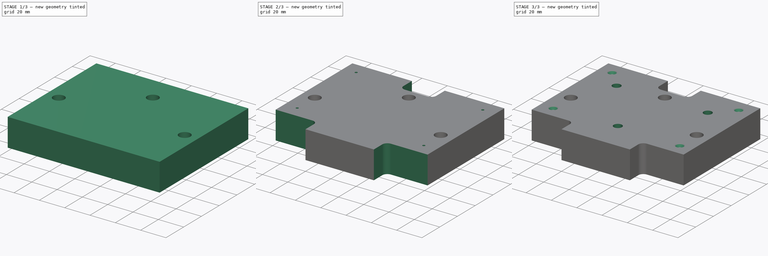
[diagram: build sequence overview — one tinted view per stage of 3, left to right]
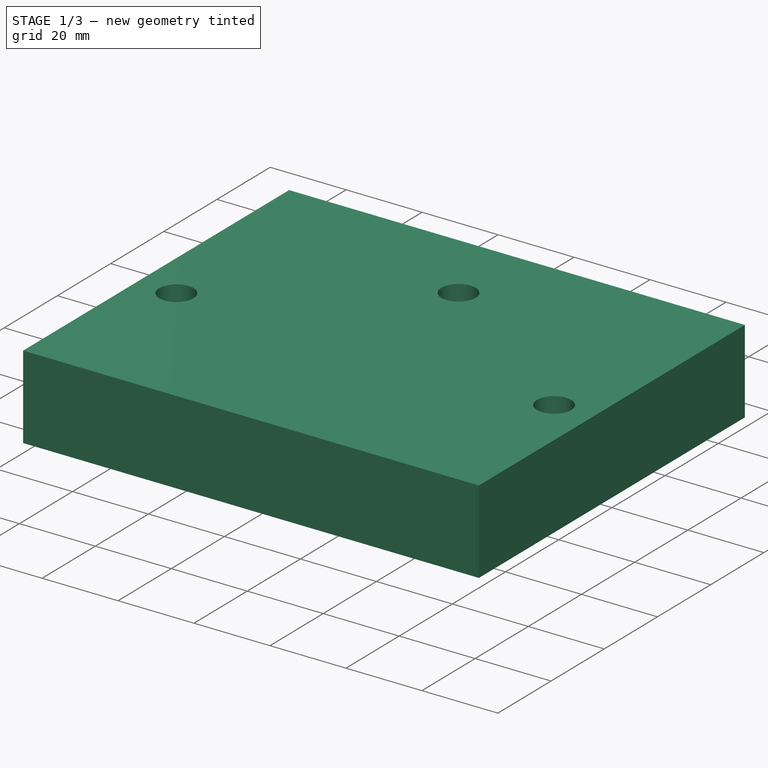
[diagram: stage 1 of 3 — iso view after this stage's code; geometry added in this stage tinted green]
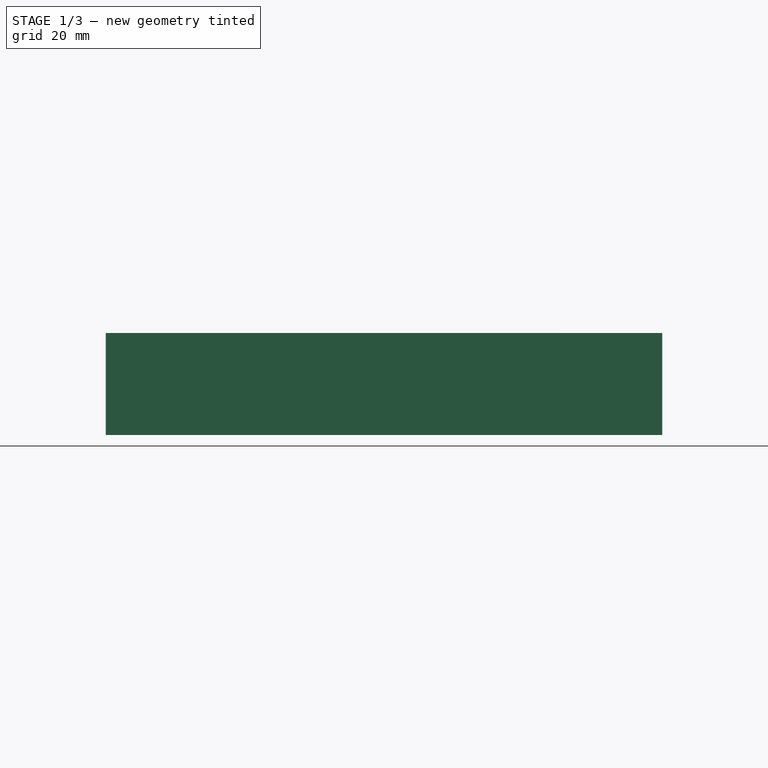
[diagram: stage 1 of 3 — front view after this stage's code; geometry added in this stage tinted green]
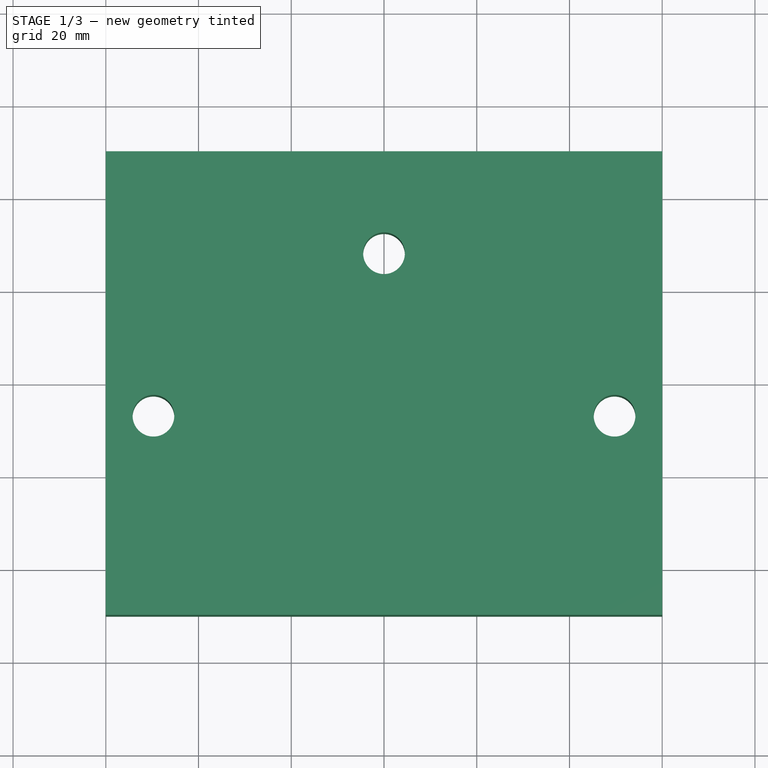
[diagram: stage 1 of 3 — top view after this stage's code; geometry added in this stage tinted green]
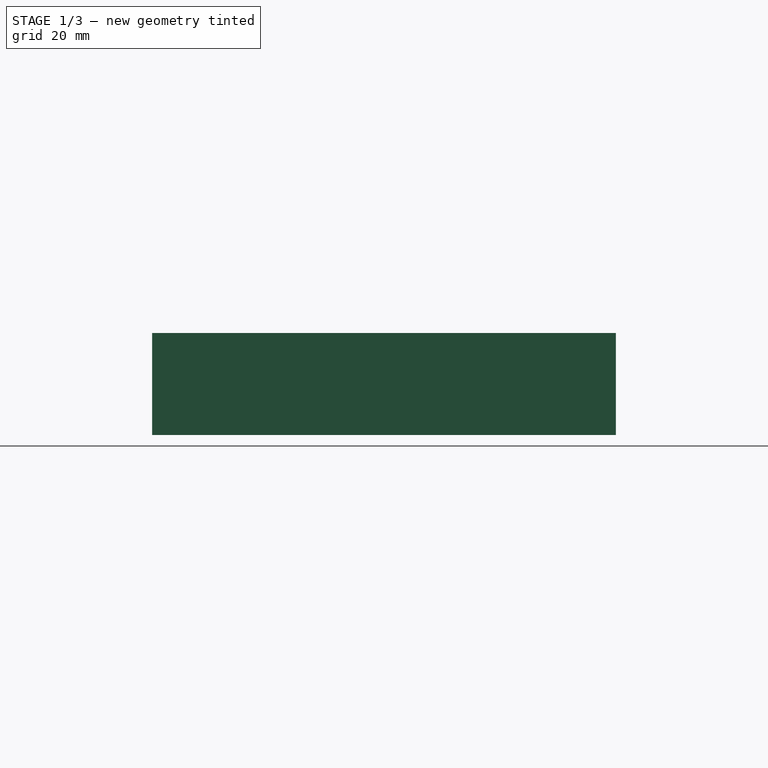
[diagram: stage 1 of 3 — right view after this stage's code; geometry added in this stage tinted green]
FCSTD DOCUMENT  (FreeCAD 0.16R6704 (Git))
Label: Tisch X-Achse Kopplungsstueck
License: All rights reserved
LicenseURL: http://en.wikipedia.org/wiki/All_rights_reserved
objects: Drawing::FeatureViewPython×35, Sketcher::SketchObject×6, PartDesign::Pocket×5, Drawing::FeatureViewPart×3, PartDesign::Pad×1, PartDesign::Chamfer×1, Drawing::FeaturePage×1
note: 19 computed .brp shape members not serialized (recipe doc carries the construction recipe); baked Part::Feature solids carry a one-line shape summary decoded from their .brp

FEATURE [Sketcher::SketchObject] Sketch
  sketch-geometry (4):
    g0: LineSegment StartX=-60 StartY=50 StartZ=0 EndX=60 EndY=50 EndZ=0
    g1: LineSegment StartX=60 StartY=50 StartZ=0 EndX=60 EndY=-50 EndZ=0
    g2: LineSegment StartX=60 StartY=-50 StartZ=0 EndX=-60 EndY=-50 EndZ=0
    g3: LineSegment StartX=-60 StartY=-50 StartZ=0 EndX=-60 EndY=50 EndZ=0
  constraints (11):
    c: Coincident(g0,g1)
    c: Coincident(g1,g2)
    c: Coincident(g2,g3)
    c: Coincident(g3,g0)
    c: Horizontal(g0)
    c: Horizontal(g2)
    c: Vertical(g1)
    c: Vertical(g3)
    c: Symmetric(g0,g1,g-1)
    c: DistanceY(g1,g1) = 100
    c: DistanceX(g0,g0) = 120
FEATURE [PartDesign::Pad] Pad  label="Base"
  Length = 22
  Length2 = 100
  Sketch = -> Sketch
  Type = 0
FEATURE [Sketcher::SketchObject] Sketch001
  Placement = pos=(0,0,0) rot=(1,0,0;3.14159rad)
  Support = -> Pad [Face5]
  sketch-geometry (3):
    g0: Circle CenterX=-49.725 CenterY=7.03 CenterZ=0 NormalX=0 NormalY=0 NormalZ=1 Radius=4.5
    g1: Circle CenterX=0 CenterY=-28.025 CenterZ=0 NormalX=0 NormalY=0 NormalZ=1 Radius=4.5
    g2: Circle CenterX=49.725 CenterY=7.03 CenterZ=0 NormalX=0 NormalY=0 NormalZ=1 Radius=4.5
  constraints (8):
    c: PointOnObject(g1,g-2)
    c: Symmetric(g0,g2,g-2)
    c: DistanceY(g-1,g0) = 7.03
    c: DistanceX(g0,g-1) = 49.725
    c: DistanceY(g1,g-1) = 28.025
    c: Radius(g0) = 4.5
    c: Equal(g0,g1)
    c: Equal(g0,g2)
FEATURE [PartDesign::Pocket] Pocket  label="Holes for mounting screws (stepper motor)"
  Length = 5
  Sketch = -> Sketch001
  Type = 1
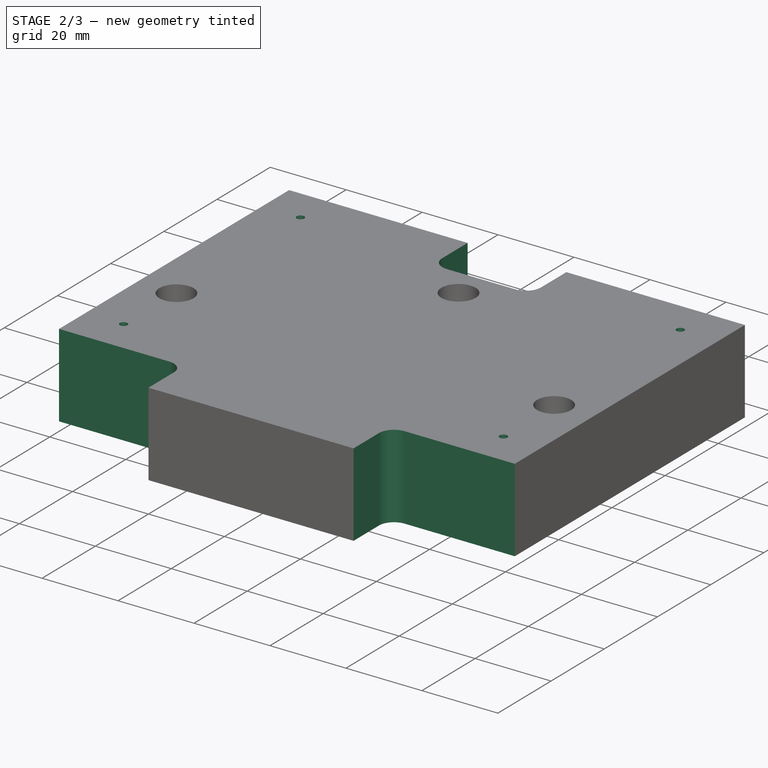
[diagram: stage 2 of 3 — iso view after this stage's code; geometry added in this stage tinted green]
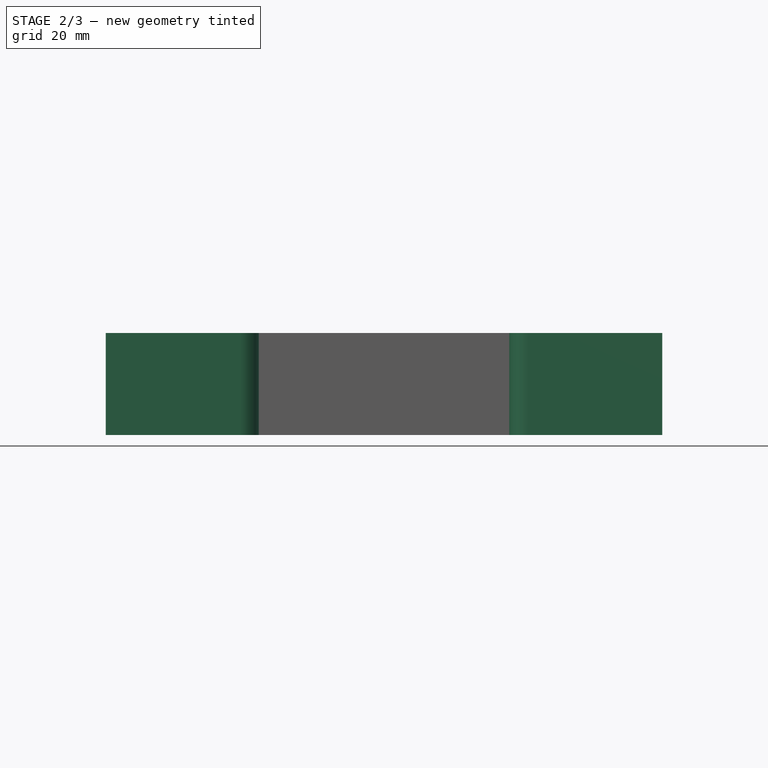
[diagram: stage 2 of 3 — front view after this stage's code; geometry added in this stage tinted green]
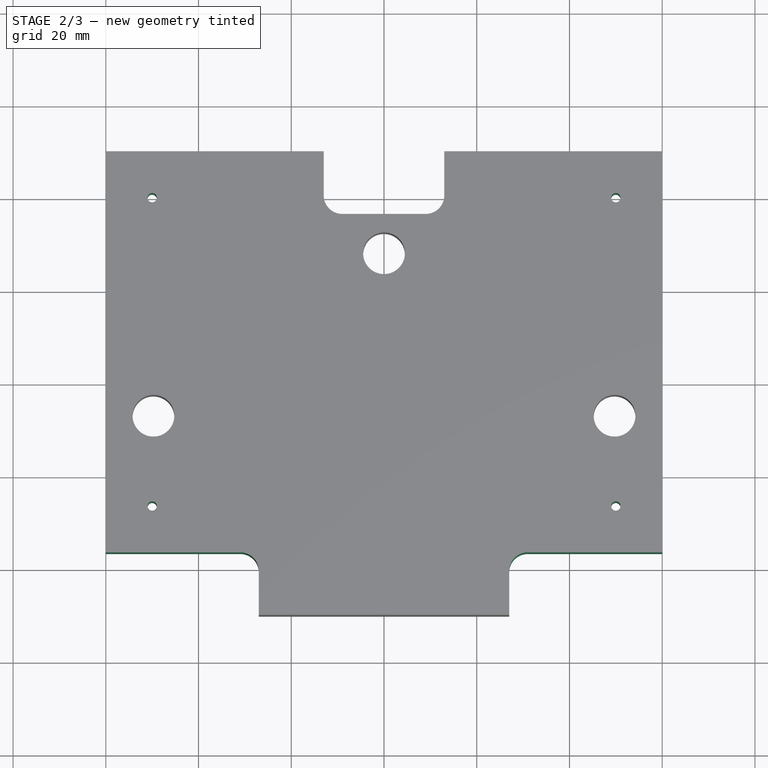
[diagram: stage 2 of 3 — top view after this stage's code; geometry added in this stage tinted green]
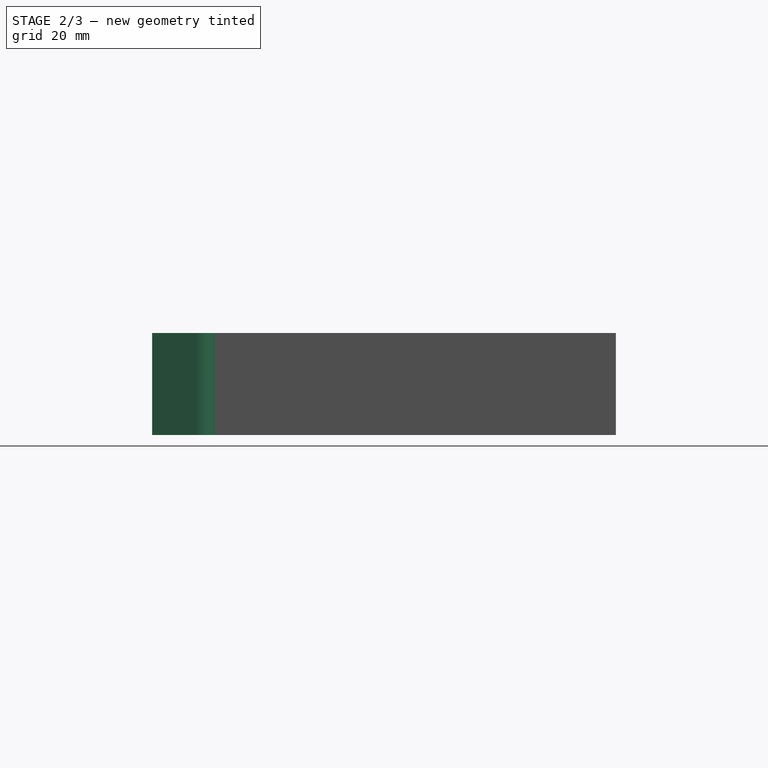
[diagram: stage 2 of 3 — right view after this stage's code; geometry added in this stage tinted green]
FEATURE [Sketcher::SketchObject] Sketch002
  ExternalGeometry = -> [Pocket]
  Placement = pos=(0,0,22) rot=(0,0,1;0rad)
  Support = -> Pocket [Face5]
  sketch-geometry (17):
    g0: LineSegment [constr] StartX=60 StartY=36.5 StartZ=0 EndX=60 EndY=-36.5 EndZ=0
    g1: LineSegment StartX=-60 StartY=-50 StartZ=0 EndX=-60 EndY=-36.5 EndZ=0
    g2: LineSegment StartX=60 StartY=-36.5 StartZ=0 EndX=60 EndY=-50 EndZ=0
    g3: LineSegment StartX=60 StartY=-50 StartZ=0 EndX=27 EndY=-50 EndZ=0
    g4: LineSegment StartX=13 StartY=50 StartZ=0 EndX=-13 EndY=50 EndZ=0
    g5: ArcOfCircle CenterX=-31 CenterY=-40.5 CenterZ=0 NormalX=0 NormalY=0 NormalZ=1 Radius=4 StartAngle=8.7919e-08 EndAngle=1.5708
    g6: LineSegment StartX=-27 StartY=-50 StartZ=0 EndX=-27 EndY=-40.5 EndZ=0
    g7: LineSegment StartX=-60 StartY=-36.5 StartZ=0 EndX=-31 EndY=-36.5 EndZ=0
    g8: ArcOfCircle CenterX=31 CenterY=-40.5 CenterZ=0 NormalX=0 NormalY=0 NormalZ=1 Radius=4 StartAngle=1.5708 EndAngle=3.1416
    g9: LineSegment StartX=27 StartY=-50 StartZ=0 EndX=27 EndY=-40.5 EndZ=0
    g10: LineSegment StartX=60 StartY=-36.5 StartZ=0 EndX=31 EndY=-36.5 EndZ=0
    g11: ArcOfCircle CenterX=-9 CenterY=40.5 CenterZ=0 NormalX=0 NormalY=0 NormalZ=1 Radius=4 StartAngle=3.14159 EndAngle=4.71239
    g12: ArcOfCircle CenterX=9 CenterY=40.5 CenterZ=0 NormalX=0 NormalY=0 NormalZ=1 Radius=4 StartAngle=4.71239 EndAngle=6.28319
    g13: LineSegment StartX=-13 StartY=40.5 StartZ=0 EndX=-13 EndY=50 EndZ=0
    g14: LineSegment StartX=13 StartY=40.5 StartZ=0 EndX=13 EndY=50 EndZ=0
    g15: LineSegment StartX=-9 StartY=36.5 StartZ=0 EndX=9 EndY=36.5 EndZ=0
    g16: LineSegment StartX=-27 StartY=-50 StartZ=0 EndX=-60 EndY=-50 EndZ=0
  constraints (53):
    c: DistanceY(g0,g0) = 73
    c: PointOnObject(g0,g-3)
    c: Vertical(g1)
    c: Coincident(g2,g3)
    c: Horizontal(g3)
    c: Vertical(g2)
    c: Coincident(g2,g-3)
    c: Horizontal(g4)
    c: PointOnObject(g-3,g4)
    c: Symmetric(g4,g4,g-2)
    c: Radius(g5) = 4
    c: Coincident(g5,g7)
    c: Coincident(g5,g6)
    c: Coincident(g8,g9)
    c: Coincident(g3,g9)
    c: Coincident(g10,g0)
    c: Coincident(g8,g10)
    c: Coincident(g13,g11)
    c: Coincident(g13,g4)
    c: Coincident(g14,g12)
    c: Coincident(g15,g11)
    c: Coincident(g15,g12)
    c: Vertical(g13)
    c: Vertical(g14)
    c: Horizontal(g15)
    c: Equal(g8,g5)
    c: Equal(g5,g11)
    c: Equal(g11,g12)
    c: Tangent(g11,g13)
    c: Coincident(g4,g14)
    c: Tangent(g12,g14)
    c: DistanceX(g4,g-1) = 13
    c: Vertical(g9)
    c: Tangent(g11,g15)
    c: Tangent(g8,g9)
    c: Tangent(g8,g10)
    c: Horizontal(g10)
    c: Coincident(g0,g2)
    c: Symmetric(g0,g0,g-1)
    c: PointOnObject(g0,g15)
    c: Coincident(g7,g1)
    c: Tangent(g7,g5)
    c: Tangent(g5,g6)
    c: Vertical(g6)
    c: Horizontal(g7)
    c: Coincident(g16,g6)
    c: Coincident(g16,g1)
    c: Horizontal(g16)
    c: PointOnObject(g1,g10)
    c: Symmetric(g6,g3,g-2)
    c: Equal(g3,g16)
    c: DistanceX(g6,g-1) = 27
    c: Tangent(g12,g15)
FEATURE [PartDesign::Pocket] Pocket001  label="Geometry cutout to avoid bearings"
  Length = 5
  Sketch = -> Sketch002
  Type = 1
FEATURE [Sketcher::SketchObject] Sketch003
  ExternalGeometry = -> [Pocket001]
  Placement = pos=(0,0,22) rot=(0,0,1;0rad)
  Support = -> Pocket001 [Face4]
  sketch-geometry (10):
    g0: Circle CenterX=50 CenterY=-26.5 CenterZ=0 NormalX=0 NormalY=0 NormalZ=1 Radius=1
    g1: Circle CenterX=-50 CenterY=-26.5 CenterZ=0 NormalX=0 NormalY=0 NormalZ=1 Radius=1
    g2: Circle CenterX=50 CenterY=40 CenterZ=0 NormalX=0 NormalY=0 NormalZ=1 Radius=1
    g3: Circle CenterX=-50 CenterY=40 CenterZ=0 NormalX=0 NormalY=0 NormalZ=1 Radius=1
    g4: LineSegment [constr] StartX=50 StartY=-26.5 StartZ=0 EndX=-50 EndY=-26.5 EndZ=0
    g5: LineSegment [constr] StartX=-50 StartY=-26.5 StartZ=0 EndX=-50 EndY=40 EndZ=0
    g6: LineSegment [constr] StartX=-50 StartY=40 StartZ=0 EndX=50 EndY=40 EndZ=0
    g7: LineSegment [constr] StartX=50 StartY=40 StartZ=0 EndX=50 EndY=-26.5 EndZ=0
    g8: LineSegment [constr] StartX=50 StartY=-26.5 StartZ=0 EndX=60 EndY=-36.5 EndZ=0
    g9: LineSegment [constr] StartX=50 StartY=40 StartZ=0 EndX=60 EndY=50 EndZ=0
  constraints (24):
    c: Coincident(g4,g5)
    c: Coincident(g5,g6)
    c: Coincident(g6,g7)
    c: Coincident(g7,g4)
    c: Horizontal(g4)
    c: Horizontal(g6)
    c: Vertical(g5)
    c: Vertical(g7)
    c: Coincident(g4,g0)
    c: Coincident(g5,g3)
    c: Coincident(g1,g4)
    c: Coincident(g2,g6)
    c: Symmetric(g1,g0,g-2)
    c: Radius(g2) = 1
    c: Equal(g2,g0)
    c: Equal(g2,g3)
    c: Equal(g2,g1)
    c: Coincident(g8,g0)
    c: Coincident(g8,g-3)
    c: Coincident(g9,g2)
    c: Coincident(g9,g-3)
    c: DistanceX(g2,g9) = 10
    c: DistanceY(g2,g9) = 10
    c: Equal(g9,g8)
FEATURE [PartDesign::Pocket] Pocket002  label="Mounting holes -> X-Axis"
  Length = 5
  Sketch = -> Sketch003
  Type = 1
FEATURE [Sketcher::SketchObject] Sketch004
  ExternalGeometry = -> [Pocket002]
  Placement = pos=(0,0,0) rot=(1,0,0;3.14159rad)
  Support = -> Pocket002 [Face2]
  sketch-geometry (8):
    g0: Circle CenterX=0 CenterY=25 CenterZ=0 NormalX=0 NormalY=0 NormalZ=1 Radius=10
    g1: Circle CenterX=-36 CenterY=-25 CenterZ=0 NormalX=0 NormalY=0 NormalZ=1 Radius=10
    g2: Circle CenterX=36 CenterY=-25 CenterZ=0 NormalX=0 NormalY=0 NormalZ=1 Radius=10
    g3: LineSegment [constr] StartX=-36 StartY=-25 StartZ=0 EndX=36 EndY=-25 EndZ=0
    g4: LineSegment [constr] StartX=-36 StartY=0 StartZ=0 EndX=-36 EndY=-25 EndZ=0
    g5: LineSegment [constr] StartX=-36 StartY=-25 StartZ=0 EndX=-36 EndY=-50 EndZ=0
    g6: LineSegment [constr] StartX=0 StartY=50 StartZ=0 EndX=0 EndY=25 EndZ=0
    g7: LineSegment [constr] StartX=0 StartY=25 StartZ=0 EndX=0 EndY=0 EndZ=0
  constraints (23):
    c: PointOnObject(g0,g-2)
    c: Coincident(g3,g2)
    c: Horizontal(g3)
    c: Coincident(g1,g3)
    c: Symmetric(g1,g2,g-2)
    c: Radius(g1) = 10
    c: Equal(g1,g2)
    c: Equal(g1,g0)
    c: PointOnObject(g4,g-1)
    c: Coincident(g4,g1)
    c: Vertical(g4)
    c: Coincident(g4,g5)
    c: Vertical(g5)
    c: Vertical(g6)
    c: Coincident(g6,g7)
    c: PointOnObject(g7,g-1)
    c: Vertical(g7)
    c: Coincident(g6,g0)
    c: Equal(g4,g5)
    c: Equal(g7,g6)
    c: PointOnObject(g6,g-3)
    c: PointOnObject(g5,g-4)
    c: DistanceX(g-4,g5) = 24
FEATURE [PartDesign::Pocket] Pocket003  label="Pocket for drive-in-nut"
  Length = 1.2
  Sketch = -> Sketch004
  Type = 0
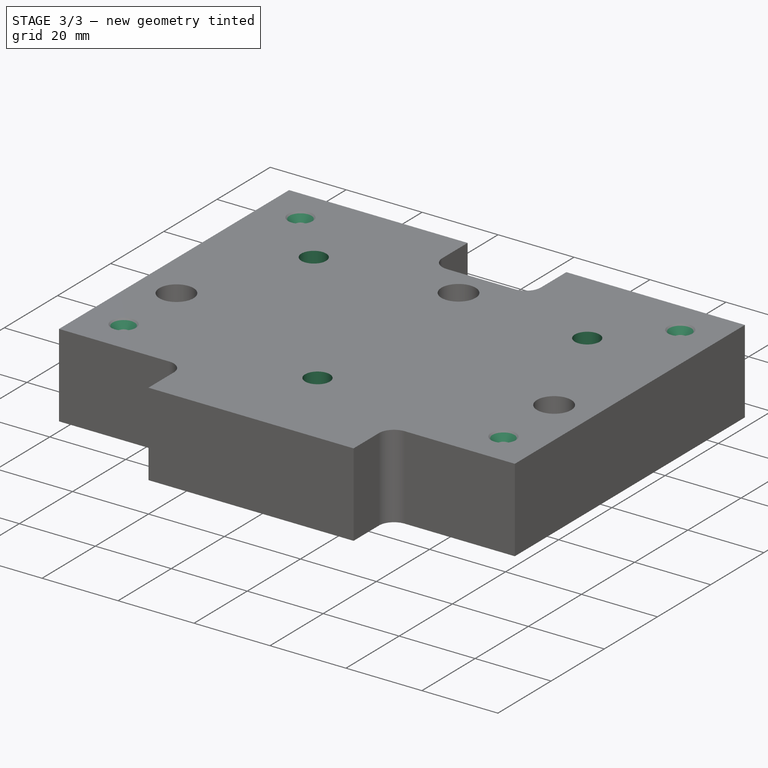
[diagram: stage 3 of 3 — iso view after this stage's code; geometry added in this stage tinted green]
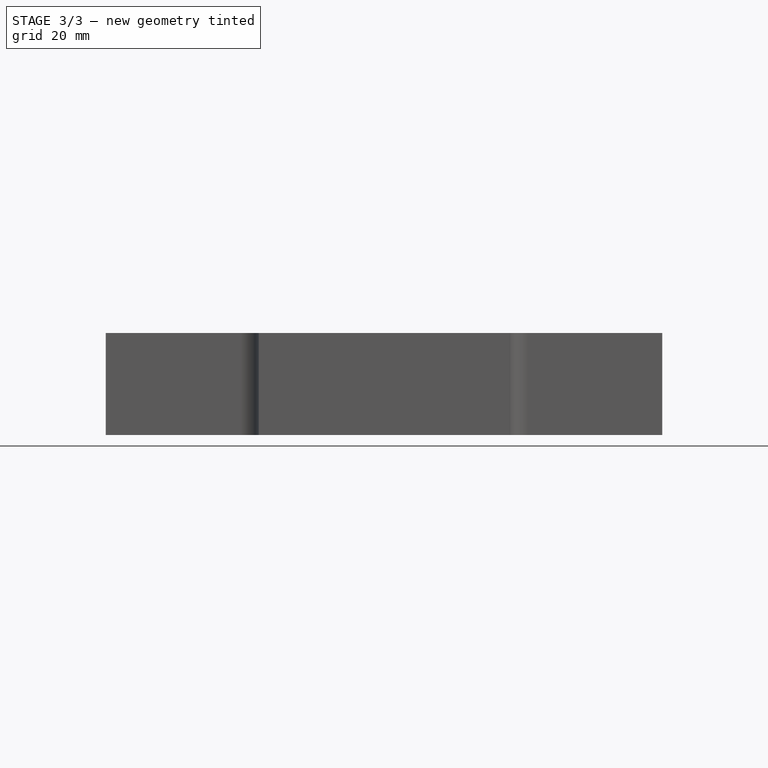
[diagram: stage 3 of 3 — front view after this stage's code; geometry added in this stage tinted green]
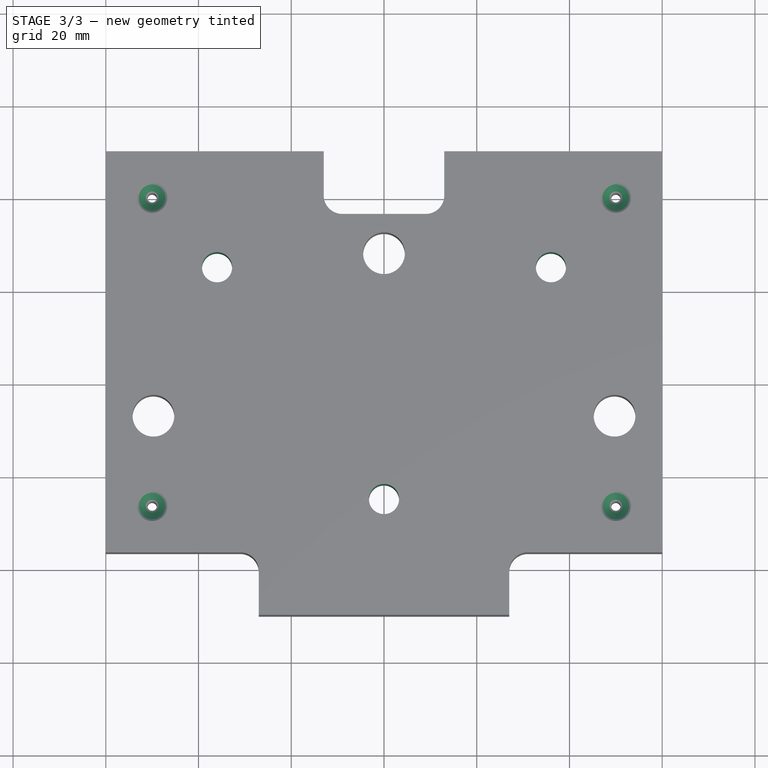
[diagram: stage 3 of 3 — top view after this stage's code; geometry added in this stage tinted green]
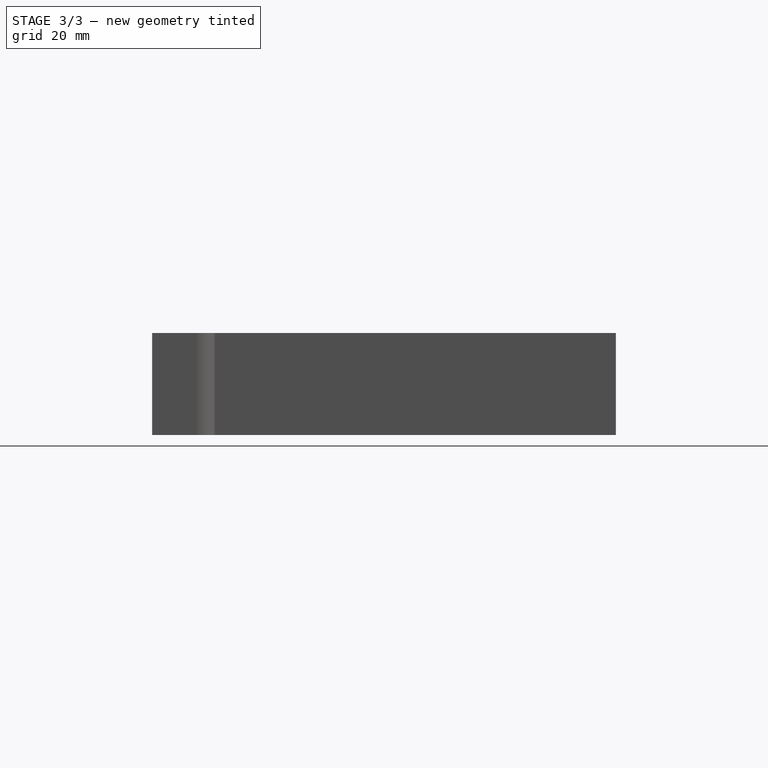
[diagram: stage 3 of 3 — right view after this stage's code; geometry added in this stage tinted green]
FEATURE [Sketcher::SketchObject] Sketch005
  ExternalGeometry = -> [Pocket003]
  Placement = pos=(0,0,1.2) rot=(1,0,0;3.14159rad)
  Support = -> Pocket003 [Face29]
  sketch-geometry (3):
    g0: Circle CenterX=0 CenterY=25 CenterZ=0 NormalX=0 NormalY=0 NormalZ=1 Radius=3.25
    g1: Circle CenterX=36 CenterY=-25 CenterZ=0 NormalX=0 NormalY=0 NormalZ=1 Radius=3.25
    g2: Circle CenterX=-36 CenterY=-25 CenterZ=0 NormalX=0 NormalY=0 NormalZ=1 Radius=3.25
  constraints (6):
    c: Coincident(g0,g-3)
    c: Coincident(g1,g-4)
    c: Coincident(g2,g-5)
    c: Radius(g2) = 3.25
    c: Equal(g2,g1)
    c: Equal(g2,g0)
FEATURE [PartDesign::Pocket] Pocket004  label="Pocket for screws -> z-axis"
  Length = 5
  Sketch = -> Sketch005
  Type = 1
FEATURE [Drawing::FeatureViewPython] centerLines001  # drawing view (typed FeaturePython)
  Rotation = 0
  ViewResult = <g transform="scale(0.750000,0.750000)" stroke="rgb(0,0,255)"  stroke-width="0.400000" > <path d="M 149.110667,194.000000 L 149.110667,196.666667 M 149.110667,199.333333 L 149.110667,205.656295 "/>\n<path d="M 149.110667,194.000000 L 149.110667,191.333333 M 149.110667,188.666667 L 149.110667,180.666667 M 149.110667,178.000000 L 149.110667,175.333333 M 149.110667,172.666667 L 149.110667,164.666667 M 149.110667,162.000000 L 149.110667,159.333333 M 149.110667,156.666667 L 149.110667,148.666667 M 149.110667,146.000000 L 149.110667,143.333333 M 149.110667,140.666667 L 149.110667,132.666667 M 149.110667,130.000000 L 149.110667,127.333333 M 149.110667,124.666667 L 149.110667,116.666667 M 149.110667,114.000000 L 149.110667,111.333333 M 149.110667,108.666667 L 149.110667,100.666667 M 149.110667,98.000000 L 149.110667,95.333333 M 149.110667,92.666667 L 149.110667,86.471724 "/> </g> 
  Visible = true
  X = 0
  Y = 0
  centerLine_color = rgb(0,0,255)
  centerLine_len_dash = 6
  centerLine_len_dot = 2
  centerLine_len_gap = 2
  centerLine_width = 0.3
  click1_x = 112.636
  click1_y = 154.242
  click2_x = 112.293
  click2_y = 64.8538
FEATURE [Drawing::FeatureViewPython] centerLines002  # drawing view (typed FeaturePython)
  Rotation = 0
  ViewResult = <g transform="scale(0.750000,0.750000)" stroke="rgb(0,0,255)"  stroke-width="0.400000" > <path d="M 89.110667,137.375000 L 86.444000,137.375000 M 83.777333,137.375000 L 79.036986,137.375000 "/>\n<path d="M 89.110667,137.375000 L 91.777333,137.375000 M 94.444000,137.375000 L 102.444000,137.375000 M 105.110667,137.375000 L 107.777333,137.375000 M 110.444000,137.375000 L 118.444000,137.375000 M 121.110667,137.375000 L 123.777333,137.375000 M 126.444000,137.375000 L 134.444000,137.375000 M 137.110667,137.375000 L 139.777333,137.375000 M 142.444000,137.375000 L 150.444000,137.375000 M 153.110667,137.375000 L 155.777333,137.375000 M 158.444000,137.375000 L 166.444000,137.375000 M 169.110667,137.375000 L 171.777333,137.375000 M 174.444000,137.375000 L 182.444000,137.375000 M 185.110667,137.375000 L 187.777333,137.375000 M 190.444000,137.375000 L 198.444000,137.375000 M 201.110667,137.375000 L 203.777333,137.375000 M 206.444000,137.375000 L 214.444000,137.375000 "/> </g> 
  Visible = true
  X = 0
  Y = 0
  centerLine_color = rgb(0,0,255)
  centerLine_len_dash = 6
  centerLine_len_dot = 2
  centerLine_len_gap = 2
  centerLine_width = 0.3
  click1_x = 59.2777
  click1_y = 103.114
  click2_x = 161.877
  click2_y = 101.999
FEATURE [Drawing::FeatureViewPython] dia001  # drawing view (typed FeaturePython)
  Rotation = 0
  ViewResult = <g>  <circle cx ="135.083000" cy ="138.562500" r="0.500000" stroke="none" fill="rgb(0,0,255)" /> \n<line x1="131.261824" y1="134.419324" x2="137.116894" y2="140.767784" style="stroke:rgb(0,0,255);stroke-width:0.30" />\n<polygon points="133.049106,136.357216 131.750307,133.473968 130.337248,133.416838 130.280118,134.829897" style="fill:rgb(0,0,255);stroke:rgb(0,0,255);stroke-width:0" />\n<polygon points="137.116894,140.767784 138.415693,143.651032 139.828752,143.708162 139.885882,142.295103" style="fill:rgb(0,0,255);stroke:rgb(0,0,255);stroke-width:0" />\n<line x1="131.261824" y1="134.419324" x2="123.819143" y2="134.419324" style="stroke:rgb(0,0,255);stroke-width:0.30" />\n<text x="127.540483" y="132.419324" font-family="Verdana" font-size="3.6" fill="rgb(0,0,255)" text-anchor="middle" transform="rotate(0.000000 127.540483,132.419324)" >Ø8</text> </g>
  Visible = true
  X = 0
  Y = 0
  arrowL1 = 3
  arrowL2 = 1
  arrowW = 2
  arrow_scheme = 0
  autoPlaceOffset = 2
  autoPlaceText = true
  centerPointDia = 1
  click1_x = 131.262
  click1_y = 134.419
  click2_x = 123.819
  click2_y = 134.758
  click3_x = 123.819
  click3_y = 134.758
  comma_decimal_place = false
  lineColor = rgb(0,0,255)
  strokeWidth = 0.3
  textFormat_circular = Ø%(value)3.3f
  textRenderer_color = rgb(0,0,255)
  textRenderer_family = Verdana
  textRenderer_size = 3.6
  unit_custom_scale = 1
  unit_scheme = 0
FEATURE [Drawing::FeatureViewPython] dia002  # drawing view (typed FeaturePython)
  Rotation = 0
  ViewResult = <g>  <circle cx ="111.833000" cy ="126.750000" r="0.500000" stroke="none" fill="rgb(0,0,255)" /> \n<line x1="103.069851" y1="119.646731" x2="117.659314" y2="131.472718" style="stroke:rgb(0,0,255);stroke-width:0.30" />\n<polygon points="106.006686,122.027282 107.707516,124.693211 109.114053,124.546065 108.966907,123.139527" style="fill:rgb(0,0,255);stroke:rgb(0,0,255);stroke-width:0" />\n<polygon points="117.659314,131.472718 115.958484,128.806789 114.551947,128.953935 114.699093,130.360473" style="fill:rgb(0,0,255);stroke:rgb(0,0,255);stroke-width:0" />\n<line x1="103.069851" y1="119.646731" x2="95.401635" y2="119.646731" style="stroke:rgb(0,0,255);stroke-width:0.30" />\n<text x="99.235743" y="117.646731" font-family="Verdana" font-size="3.6" fill="rgb(0,0,255)" text-anchor="middle" transform="rotate(0.000000 99.235743,117.646731)" >Ø20</text> </g>
  Visible = true
  X = 0
  Y = 0
  arrowL1 = 3
  arrowL2 = 1
  arrowW = 2
  arrow_scheme = 0
  autoPlaceOffset = 2
  autoPlaceText = true
  centerPointDia = 1
  click1_x = 103.07
  click1_y = 119.647
  click2_x = 95.4016
  click2_y = 120.549
  click3_x = 95.4016
  click3_y = 120.549
  comma_decimal_place = false
  lineColor = rgb(0,0,255)
  strokeWidth = 0.3
  textFormat_circular = Ø%(value)3.3f
  textRenderer_color = rgb(0,0,255)
  textRenderer_family = Verdana
  textRenderer_size = 3.6
  unit_custom_scale = 1
  unit_scheme = 0
FEATURE [Drawing::FeatureViewPython] dia003  # drawing view (typed FeaturePython)
  Rotation = 0
  ViewResult = <g>  <circle cx ="138.833000" cy ="89.250000" r="0.500000" stroke="none" fill="rgb(0,0,255)" /> \n<line x1="131.036288" y1="82.884399" x2="140.721125" y2="90.791554" style="stroke:rgb(0,0,255);stroke-width:0.30" />\n<polygon points="136.944875,87.708446 135.253460,85.036533 133.846412,85.178716 133.988596,86.585764" style="fill:rgb(0,0,255);stroke:rgb(0,0,255);stroke-width:0" />\n<polygon points="140.721125,90.791554 142.412540,93.463467 143.819588,93.321284 143.677404,91.914236" style="fill:rgb(0,0,255);stroke:rgb(0,0,255);stroke-width:0" />\n<line x1="131.036288" y1="82.884399" x2="124.044679" y2="82.884399" style="stroke:rgb(0,0,255);stroke-width:0.30" />\n<text x="127.540483" y="80.884399" font-family="Verdana" font-size="3.6" fill="rgb(0,0,255)" text-anchor="middle" transform="rotate(0.000000 127.540483,80.884399)" >Ø6.5</text> </g>
  Visible = true
  X = 0
  Y = 0
  arrowL1 = 3
  arrowL2 = 1
  arrowW = 2
  arrow_scheme = 0
  autoPlaceOffset = 2
  autoPlaceText = true
  centerPointDia = 1
  click1_x = 131.036
  click1_y = 82.8844
  click2_x = 124.045
  click2_y = 83.8993
  click3_x = 124.045
  click3_y = 83.8993
  comma_decimal_place = false
  lineColor = rgb(0,0,255)
  strokeWidth = 0.3
  textFormat_circular = Ø%(value)3.3f
  textRenderer_color = rgb(0,0,255)
  textRenderer_family = Verdana
  textRenderer_size = 3.6
  unit_custom_scale = 1
  unit_scheme = 0
FEATURE [Drawing::FeatureViewPython] dia004  # drawing view (typed FeaturePython)
  Rotation = 0
  ViewResult = <g>  <circle cx ="74.539250" cy ="113.272500" r="0.500000" stroke="none" fill="rgb(0,0,255)" /> \n<line x1="81.643952" y1="110.738068" x2="77.718048" y2="114.406460" style="stroke:rgb(0,0,255);stroke-width:0.30" />\n<polygon points="71.360452,112.138540 68.870841,110.188709 67.592987,110.794587 68.198865,112.072441" style="fill:rgb(0,0,255);stroke:rgb(0,0,255);stroke-width:0" />\n<polygon points="77.718048,114.406460 80.207659,116.356291 81.485513,115.750413 80.879635,114.472559" style="fill:rgb(0,0,255);stroke:rgb(0,0,255);stroke-width:0" />\n<line x1="81.643952" y1="110.738068" x2="85.478060" y2="110.738068" style="stroke:rgb(0,0,255);stroke-width:0.30" />\n<text x="83.561006" y="108.738068" font-family="Verdana" font-size="3.6" fill="rgb(0,0,255)" text-anchor="middle" transform="rotate(0.000000 83.561006,108.738068)" >Ø9</text> </g>
  Visible = true
  X = 0
  Y = 0
  arrowL1 = 3
  arrowL2 = 1
  arrowW = 2
  arrow_scheme = 0
  autoPlaceOffset = 2
  autoPlaceText = true
  centerPointDia = 1
  click1_x = 81.644
  click1_y = 110.738
  click2_x = 85.4781
  click2_y = 111.076
  click3_x = 85.4781
  click3_y = 111.076
  comma_decimal_place = false
  lineColor = rgb(0,0,255)
  strokeWidth = 0.3
  textFormat_circular = Ø%(value)3.3f
  textRenderer_color = rgb(0,0,255)
  textRenderer_family = Verdana
  textRenderer_size = 3.6
  unit_custom_scale = 1
  unit_scheme = 0
FEATURE [Drawing::FeatureViewPython] dia005  # drawing view (typed FeaturePython)
  Rotation = 0
  ViewResult = <g>  <circle cx ="74.333000" cy ="78.000000" r="0.500000" stroke="none" fill="rgb(0,0,255)" /> \n<line x1="80.177970" y1="78.260915" x2="73.583746" y2="77.966554" style="stroke:rgb(0,0,255);stroke-width:0.30" />\n<polygon points="75.082254,78.033446 78.034674,79.166236 79.078274,78.211826 78.123864,77.168226" style="fill:rgb(0,0,255);stroke:rgb(0,0,255);stroke-width:0" />\n<polygon points="73.583746,77.966554 70.631326,76.833764 69.587726,77.788174 70.542136,78.831774" style="fill:rgb(0,0,255);stroke:rgb(0,0,255);stroke-width:0" />\n<line x1="80.177970" y1="78.260915" x2="85.929132" y2="78.260915" style="stroke:rgb(0,0,255);stroke-width:0.30" />\n<text x="83.053551" y="76.260915" font-family="Verdana" font-size="3.6" fill="rgb(0,0,255)" text-anchor="middle" transform="rotate(0.000000 83.053551,76.260915)" >Ø2</text> </g>
  Visible = true
  X = 0
  Y = 0
  arrowL1 = 3
  arrowL2 = 1
  arrowW = 2
  arrow_scheme = 0
  autoPlaceOffset = 2
  autoPlaceText = true
  centerPointDia = 1
  click1_x = 80.178
  click1_y = 78.2609
  click2_x = 85.9291
  click2_y = 78.8248
  click3_x = 85.9291
  click3_y = 78.8248
  comma_decimal_place = false
  lineColor = rgb(0,0,255)
  strokeWidth = 0.3
  textFormat_circular = Ø%(value)3.3f
  textRenderer_color = rgb(0,0,255)
  textRenderer_family = Verdana
  textRenderer_size = 3.6
  unit_custom_scale = 1
  unit_scheme = 0
FEATURE [Drawing::FeatureViewPython] dim001  # drawing view (typed FeaturePython)
  Rotation = 0
  ViewResult = <g> \n  <line x1="74.333000" y1="76.000000" x2="74.333000" y2="67.757427" style="stroke:rgb(0,0,255);stroke-width:0.30" />\n<line x1="66.833000" y1="68.500000" x2="66.833000" y2="67.757427" style="stroke:rgb(0,0,255);stroke-width:0.30" />\n<line x1="74.333000" y1="68.757427" x2="66.833000" y2="68.757427" style="stroke:rgb(0,0,255);stroke-width:0.30" /> \n  <polygon points="66.833000,68.757427 63.833000,67.757427 62.833000,68.757427 63.833000,69.757427" style="fill:rgb(0,0,255);stroke:rgb(0,0,255);stroke-width:0" /><polygon points="74.333000,68.757427 77.333000,69.757427 78.333000,68.757427 77.333000,67.757427" style="fill:rgb(0,0,255);stroke:rgb(0,0,255);stroke-width:0" /> \n  <text x="70.583000" y="66.757427" font-family="Verdana" font-size="3.6" fill="rgb(0,0,255)" text-anchor="middle" transform="rotate(0.000000 70.583000,66.757427)" >10</text> </g>
  Visible = true
  X = 0
  Y = 0
  arrowL1 = 3
  arrowL2 = 1
  arrowW = 2
  arrow_scheme = 0
  autoPlaceOffset = 2
  autoPlaceText = true
  click1_x = 69.9489
  click1_y = 68.7574
  click2_x = 69.9489
  click2_y = 68.7574
  comma_decimal_place = false
  dimension_line_overshoot = 1
  gap_datum_points = 2
  halfDimension_linear = false
  lineColor = rgb(0,0,255)
  strokeWidth = 0.3
  textFormat_linear = %(value)3.3f
  textRenderer_color = rgb(0,0,255)
  textRenderer_family = Verdana
  textRenderer_size = 3.6
  unit_custom_scale = 1
  unit_scheme = 0
FEATURE [Drawing::FeatureViewPython] dim002  # drawing view (typed FeaturePython)
  Rotation = 0
  ViewResult = <g> \n  <line x1="72.333000" y1="78.000000" x2="64.020311" y2="78.000000" style="stroke:rgb(0,0,255);stroke-width:0.30" />\n<line x1="64.833000" y1="70.500000" x2="64.020311" y2="70.500000" style="stroke:rgb(0,0,255);stroke-width:0.30" />\n<line x1="65.020311" y1="78.000000" x2="65.020311" y2="70.500000" style="stroke:rgb(0,0,255);stroke-width:0.30" /> \n  <polygon points="65.020311,70.500000 66.020311,67.500000 65.020311,66.500000 64.020311,67.500000" style="fill:rgb(0,0,255);stroke:rgb(0,0,255);stroke-width:0" /><polygon points="65.020311,78.000000 64.020311,81.000000 65.020311,82.000000 66.020311,81.000000" style="fill:rgb(0,0,255);stroke:rgb(0,0,255);stroke-width:0" /> \n  <text x="63.020311" y="74.250000" font-family="Verdana" font-size="3.6" fill="rgb(0,0,255)" text-anchor="middle" transform="rotate(-90.000000 63.020311,74.250000)" >10</text> </g>
  Visible = true
  X = 0
  Y = 0
  arrowL1 = 3
  arrowL2 = 1
  arrowW = 2
  arrow_scheme = 0
  autoPlaceOffset = 2
  autoPlaceText = true
  click1_x = 65.0203
  click1_y = 75.156
  click2_x = 65.0203
  click2_y = 75.156
  comma_decimal_place = false
  dimension_line_overshoot = 1
  gap_datum_points = 2
  halfDimension_linear = false
  lineColor = rgb(0,0,255)
  strokeWidth = 0.3
  textFormat_linear = %(value)3.3f
  textRenderer_color = rgb(0,0,255)
  textRenderer_family = Verdana
  textRenderer_size = 3.6
  unit_custom_scale = 1
  unit_scheme = 0
FEATURE [Drawing::FeatureViewPython] dim003  # drawing view (typed FeaturePython)
  Rotation = 0
  ViewResult = <g> \n  <line x1="84.833000" y1="87.250000" x2="84.833000" y2="88.144061" style="stroke:rgb(0,0,255);stroke-width:0.30" />\n<line x1="66.833000" y1="72.500000" x2="66.833000" y2="90.144061" style="stroke:rgb(0,0,255);stroke-width:0.30" />\n<line x1="84.833000" y1="89.144061" x2="66.833000" y2="89.144061" style="stroke:rgb(0,0,255);stroke-width:0.30" /> \n  <polygon points="66.833000,89.144061 69.833000,90.144061 70.833000,89.144061 69.833000,88.144061" style="fill:rgb(0,0,255);stroke:rgb(0,0,255);stroke-width:0" /><polygon points="84.833000,89.144061 81.833000,88.144061 80.833000,89.144061 81.833000,90.144061" style="fill:rgb(0,0,255);stroke:rgb(0,0,255);stroke-width:0" /> \n  <text x="75.833000" y="87.144061" font-family="Verdana" font-size="3.6" fill="rgb(0,0,255)" text-anchor="middle" transform="rotate(0.000000 75.833000,87.144061)" >24</text> </g>
  Visible = true
  X = 0
  Y = 0
  arrowL1 = 3
  arrowL2 = 1
  arrowW = 2
  arrow_scheme = 0
  autoPlaceOffset = 2
  autoPlaceText = true
  click1_x = 76.549
  click1_y = 89.1441
  click2_x = 76.549
  click2_y = 89.1441
  comma_decimal_place = false
  dimension_line_overshoot = 1
  gap_datum_points = 2
  halfDimension_linear = false
  lineColor = rgb(0,0,255)
  strokeWidth = 0.3
  textFormat_linear = %(value)3.3f
  textRenderer_color = rgb(0,0,255)
  textRenderer_family = Verdana
  textRenderer_size = 3.6
  unit_custom_scale = 1
  unit_scheme = 0
FEATURE [Drawing::FeatureViewPython] dim004  # drawing view (typed FeaturePython)
  Rotation = 0
  ViewResult = <g> \n  <line x1="68.833000" y1="70.500000" x2="93.211243" y2="70.500000" style="stroke:rgb(0,0,255);stroke-width:0.30" />\n<line x1="86.833000" y1="89.250000" x2="93.211243" y2="89.250000" style="stroke:rgb(0,0,255);stroke-width:0.30" />\n<line x1="92.211243" y1="70.500000" x2="92.211243" y2="89.250000" style="stroke:rgb(0,0,255);stroke-width:0.30" /> \n  <polygon points="92.211243,89.250000 93.211243,86.250000 92.211243,85.250000 91.211243,86.250000" style="fill:rgb(0,0,255);stroke:rgb(0,0,255);stroke-width:0" /><polygon points="92.211243,70.500000 91.211243,73.500000 92.211243,74.500000 93.211243,73.500000" style="fill:rgb(0,0,255);stroke:rgb(0,0,255);stroke-width:0" /> \n  <text x="90.211243" y="79.875000" font-family="Verdana" font-size="3.6" fill="rgb(0,0,255)" text-anchor="middle" transform="rotate(-90.000000 90.211243,79.875000)" >25</text> </g>
  Visible = true
  X = 0
  Y = 0
  arrowL1 = 3
  arrowL2 = 1
  arrowW = 2
  arrow_scheme = 0
  autoPlaceOffset = 2
  autoPlaceText = true
  click1_x = 92.2112
  click1_y = 87.6431
  click2_x = 92.2112
  click2_y = 87.6431
  comma_decimal_place = false
  dimension_line_overshoot = 1
  gap_datum_points = 2
  halfDimension_linear = false
  lineColor = rgb(0,0,255)
  strokeWidth = 0.3
  textFormat_linear = %(value)3.3f
  textRenderer_color = rgb(0,0,255)
  textRenderer_family = Verdana
  textRenderer_size = 3.6
  unit_custom_scale = 1
  unit_scheme = 0
FEATURE [Drawing::FeatureViewPython] dim005  # drawing view (typed FeaturePython)
  Rotation = 0
  ViewResult = <g> \n  <line x1="89.583000" y1="145.500000" x2="62.040383" y2="145.500000" style="stroke:rgb(0,0,255);stroke-width:0.30" />\n<line x1="72.539250" y1="113.272500" x2="62.040383" y2="113.272500" style="stroke:rgb(0,0,255);stroke-width:0.30" />\n<line x1="63.040383" y1="145.500000" x2="63.040383" y2="113.272500" style="stroke:rgb(0,0,255);stroke-width:0.30" /> \n  <polygon points="63.040383,113.272500 62.040383,116.272500 63.040383,117.272500 64.040383,116.272500" style="fill:rgb(0,0,255);stroke:rgb(0,0,255);stroke-width:0" /><polygon points="63.040383,145.500000 64.040383,142.500000 63.040383,141.500000 62.040383,142.500000" style="fill:rgb(0,0,255);stroke:rgb(0,0,255);stroke-width:0" /> \n  <text x="61.040383" y="129.386250" font-family="Verdana" font-size="3.6" fill="rgb(0,0,255)" text-anchor="middle" transform="rotate(-90.000000 61.040383,129.386250)" >42.97</text> </g>
  Visible = true
  X = 0
  Y = 0
  arrowL1 = 3
  arrowL2 = 1
  arrowW = 2
  arrow_scheme = 0
  autoPlaceOffset = 2
  autoPlaceText = true
  click1_x = 63.0404
  click1_y = 132.502
  click2_x = 63.0404
  click2_y = 132.502
  comma_decimal_place = false
  dimension_line_overshoot = 1
  gap_datum_points = 2
  halfDimension_linear = false
  lineColor = rgb(0,0,255)
  strokeWidth = 0.3
  textFormat_linear = %(value)3.3f
  textRenderer_color = rgb(0,0,255)
  textRenderer_family = Verdana
  textRenderer_size = 3.6
  unit_custom_scale = 1
  unit_scheme = 0
FEATURE [Drawing::FeatureViewPython] dim006  # drawing view (typed FeaturePython)
  Rotation = 0
  ViewResult = <g> \n  <line x1="74.539250" y1="111.272500" x2="74.539250" y2="107.695716" style="stroke:rgb(0,0,255);stroke-width:0.30" />\n<line x1="66.833000" y1="133.562500" x2="66.833000" y2="107.695716" style="stroke:rgb(0,0,255);stroke-width:0.30" />\n<line x1="74.539250" y1="108.695716" x2="66.833000" y2="108.695716" style="stroke:rgb(0,0,255);stroke-width:0.30" /> \n  <polygon points="66.833000,108.695716 63.833000,107.695716 62.833000,108.695716 63.833000,109.695716" style="fill:rgb(0,0,255);stroke:rgb(0,0,255);stroke-width:0" /><polygon points="74.539250,108.695716 77.539250,109.695716 78.539250,108.695716 77.539250,107.695716" style="fill:rgb(0,0,255);stroke:rgb(0,0,255);stroke-width:0" /> \n  <text x="70.686125" y="106.695716" font-family="Verdana" font-size="3.6" fill="rgb(0,0,255)" text-anchor="middle" transform="rotate(0.000000 70.686125,106.695716)" >10.275</text> </g>
  Visible = true
  X = 0
  Y = 0
  arrowL1 = 3
  arrowL2 = 1
  arrowW = 2
  arrow_scheme = 0
  autoPlaceOffset = 2
  autoPlaceText = true
  click1_x = 72.6726
  click1_y = 108.696
  click2_x = 72.6726
  click2_y = 108.696
  comma_decimal_place = false
  dimension_line_overshoot = 1
  gap_datum_points = 2
  halfDimension_linear = false
  lineColor = rgb(0,0,255)
  strokeWidth = 0.3
  textFormat_linear = %(value)3.3f
  textRenderer_color = rgb(0,0,255)
  textRenderer_family = Verdana
  textRenderer_size = 3.6
  unit_custom_scale = 1
  unit_scheme = 0
FEATURE [Drawing::FeatureViewPython] dim007  # drawing view (typed FeaturePython)
  Rotation = 0
  ViewResult = <g> \n  <line x1="134.083000" y1="145.500000" x2="166.823616" y2="145.500000" style="stroke:rgb(0,0,255);stroke-width:0.30" />\n<line x1="151.333000" y1="128.062500" x2="166.823616" y2="128.062500" style="stroke:rgb(0,0,255);stroke-width:0.30" />\n<line x1="165.823616" y1="145.500000" x2="165.823616" y2="128.062500" style="stroke:rgb(0,0,255);stroke-width:0.30" /> \n  <polygon points="165.823616,128.062500 164.823616,131.062500 165.823616,132.062500 166.823616,131.062500" style="fill:rgb(0,0,255);stroke:rgb(0,0,255);stroke-width:0" /><polygon points="165.823616,145.500000 166.823616,142.500000 165.823616,141.500000 164.823616,142.500000" style="fill:rgb(0,0,255);stroke:rgb(0,0,255);stroke-width:0" /> \n  <text x="163.823616" y="136.781250" font-family="Verdana" font-size="3.6" fill="rgb(0,0,255)" text-anchor="middle" transform="rotate(-90.000000 163.823616,136.781250)" >23.25</text> </g>
  Visible = true
  X = 0
  Y = 0
  arrowL1 = 3
  arrowL2 = 1
  arrowW = 2
  arrow_scheme = 0
  autoPlaceOffset = 2
  autoPlaceText = true
  click1_x = 165.824
  click1_y = 135.348
  click2_x = 165.824
  click2_y = 135.348
  comma_decimal_place = false
  dimension_line_overshoot = 1
  gap_datum_points = 2
  halfDimension_linear = false
  lineColor = rgb(0,0,255)
  strokeWidth = 0.3
  textFormat_linear = %(value)3.3f
  textRenderer_color = rgb(0,0,255)
  textRenderer_family = Verdana
  textRenderer_size = 3.6
  unit_custom_scale = 1
  unit_scheme = 0
FEATURE [Drawing::FeatureViewPython] dim008  # drawing view (typed FeaturePython)
  Rotation = 0
  ViewResult = <g> \n  <line x1="149.333000" y1="126.062500" x2="149.333000" y2="122.274620" style="stroke:rgb(0,0,255);stroke-width:0.30" />\n<line x1="156.833000" y1="133.562500" x2="156.833000" y2="122.274620" style="stroke:rgb(0,0,255);stroke-width:0.30" />\n<line x1="149.333000" y1="123.274620" x2="156.833000" y2="123.274620" style="stroke:rgb(0,0,255);stroke-width:0.30" /> \n  <polygon points="156.833000,123.274620 159.833000,124.274620 160.833000,123.274620 159.833000,122.274620" style="fill:rgb(0,0,255);stroke:rgb(0,0,255);stroke-width:0" /><polygon points="149.333000,123.274620 146.333000,122.274620 145.333000,123.274620 146.333000,124.274620" style="fill:rgb(0,0,255);stroke:rgb(0,0,255);stroke-width:0" /> \n  <text x="153.083000" y="121.274620" font-family="Verdana" font-size="3.6" fill="rgb(0,0,255)" text-anchor="middle" transform="rotate(0.000000 153.083000,121.274620)" >10</text> </g>
  Visible = true
  X = 0
  Y = 0
  arrowL1 = 3
  arrowL2 = 1
  arrowW = 2
  arrow_scheme = 0
  autoPlaceOffset = 2
  autoPlaceText = true
  click1_x = 155.252
  click1_y = 123.275
  click2_x = 155.252
  click2_y = 123.275
  comma_decimal_place = false
  dimension_line_overshoot = 1
  gap_datum_points = 2
  halfDimension_linear = false
  lineColor = rgb(0,0,255)
  strokeWidth = 0.3
  textFormat_linear = %(value)3.3f
  textRenderer_color = rgb(0,0,255)
  textRenderer_family = Verdana
  textRenderer_size = 3.6
  unit_custom_scale = 1
  unit_scheme = 0
FEATURE [Drawing::FeatureViewPython] dim009  # drawing view (typed FeaturePython)
  Rotation = 0
  ViewResult = <g> \n  <line x1="66.833000" y1="68.500000" x2="66.833000" y2="60.971402" style="stroke:rgb(0,0,255);stroke-width:0.30" />\n<line x1="102.083000" y1="68.500000" x2="102.083000" y2="60.971402" style="stroke:rgb(0,0,255);stroke-width:0.30" />\n<line x1="66.833000" y1="61.971402" x2="102.083000" y2="61.971402" style="stroke:rgb(0,0,255);stroke-width:0.30" /> \n  <polygon points="102.083000,61.971402 99.083000,60.971402 98.083000,61.971402 99.083000,62.971402" style="fill:rgb(0,0,255);stroke:rgb(0,0,255);stroke-width:0" /><polygon points="66.833000,61.971402 69.833000,62.971402 70.833000,61.971402 69.833000,60.971402" style="fill:rgb(0,0,255);stroke:rgb(0,0,255);stroke-width:0" /> \n  <text x="84.458000" y="59.971402" font-family="Verdana" font-size="3.6" fill="rgb(0,0,255)" text-anchor="middle" transform="rotate(0.000000 84.458000,59.971402)" >47</text> </g>
  Visible = true
  X = 0
  Y = 0
  arrowL1 = 3
  arrowL2 = 1
  arrowW = 2
  arrow_scheme = 0
  autoPlaceOffset = 2
  autoPlaceText = true
  click1_x = 101.193
  click1_y = 61.9714
  click2_x = 101.193
  click2_y = 61.9714
  comma_decimal_place = false
  dimension_line_overshoot = 1
  gap_datum_points = 2
  halfDimension_linear = false
  lineColor = rgb(0,0,255)
  strokeWidth = 0.3
  textFormat_linear = %(value)3.3f
  textRenderer_color = rgb(0,0,255)
  textRenderer_family = Verdana
  textRenderer_size = 3.6
  unit_custom_scale = 1
  unit_scheme = 0
FEATURE [Drawing::FeatureViewPython] dim012  # drawing view (typed FeaturePython)
  Rotation = 0
  ViewResult = <g> \n  <line x1="66.833000" y1="137.562500" x2="66.833000" y2="152.531402" style="stroke:rgb(0,0,255);stroke-width:0.30" />\n<line x1="91.583000" y1="147.500000" x2="91.583000" y2="152.531402" style="stroke:rgb(0,0,255);stroke-width:0.30" />\n<line x1="66.833000" y1="151.531402" x2="91.583000" y2="151.531402" style="stroke:rgb(0,0,255);stroke-width:0.30" /> \n  <polygon points="91.583000,151.531402 88.583000,150.531402 87.583000,151.531402 88.583000,152.531402" style="fill:rgb(0,0,255);stroke:rgb(0,0,255);stroke-width:0" /><polygon points="66.833000,151.531402 69.833000,152.531402 70.833000,151.531402 69.833000,150.531402" style="fill:rgb(0,0,255);stroke:rgb(0,0,255);stroke-width:0" /> \n  <text x="79.208000" y="149.531402" font-family="Verdana" font-size="3.6" fill="rgb(0,0,255)" text-anchor="middle" transform="rotate(0.000000 79.208000,149.531402)" >33</text> </g>
  Visible = true
  X = 0
  Y = 0
  arrowL1 = 3
  arrowL2 = 1
  arrowW = 2
  arrow_scheme = 0
  autoPlaceOffset = 2
  autoPlaceText = true
  click1_x = 79.5746
  click1_y = 151.531
  click2_x = 79.5746
  click2_y = 151.531
  comma_decimal_place = false
  dimension_line_overshoot = 1
  gap_datum_points = 2
  halfDimension_linear = false
  lineColor = rgb(0,0,255)
  strokeWidth = 0.3
  textFormat_linear = %(value)3.3f
  textRenderer_color = rgb(0,0,255)
  textRenderer_family = Verdana
  textRenderer_size = 3.6
  unit_custom_scale = 1
  unit_scheme = 0
FEATURE [PartDesign::Chamfer] Chamfer  label="Chamfer for counter-sunk mounting screws -> x-axis"
  Base = -> Pocket004 [Edge53,Edge55,Edge46,Edge52]
  Size = 2.25
FEATURE [Drawing::FeatureViewPart] Ortho  label="Ortho_0_0"
  Direction = (0,0,1)
  HiddenWidth = 0.15
  LineWidth = 0.35
  Rotation = 0
  Scale = 0.75
  ShowHiddenLines = true
  ShowSmoothLines = false
  Source = -> Chamfer
  Tolerance = 0.05
  ViewResult = <blob: 2977 chars omitted>
  Visible = true
  X = 111.833
  Y = 108
FEATURE [Drawing::FeatureViewPart] Ortho001  label="Ortho_1_0"
  Direction = (1,0,0)
  HiddenWidth = 0.15
  LineWidth = 0.35
  Rotation = 180
  Scale = 0.75
  ShowHiddenLines = true
  ShowSmoothLines = false
  Source = -> Chamfer
  Tolerance = 0.05
  ViewResult = <blob: 23512 chars omitted>
  Visible = true
  X = 230.167
  Y = 108
FEATURE [Drawing::FeatureViewPart] Ortho002  label="Ortho_1_1"
  Direction = (0.57735,0.57735,0.57735)
  HiddenWidth = 0.15
  LineWidth = 0.35
  Rotation = 0
  Scale = 0.35
  ShowHiddenLines = true
  ShowSmoothLines = false
  Source = -> Chamfer
  Tolerance = 0.05
  ViewResult = <blob: 12295 chars omitted>
  Visible = true
  X = 224.639
  Y = 38.4282
FEATURE [Drawing::FeatureViewPython] dim013  # drawing view (typed FeaturePython)
  Rotation = 0
  ViewResult = <g> \n  <line x1="89.583000" y1="145.500000" x2="57.151189" y2="145.500000" style="stroke:rgb(0,0,255);stroke-width:0.30" />\n<line x1="64.833000" y1="135.375000" x2="57.151189" y2="135.375000" style="stroke:rgb(0,0,255);stroke-width:0.30" />\n<line x1="58.151189" y1="145.500000" x2="58.151189" y2="135.375000" style="stroke:rgb(0,0,255);stroke-width:0.30" /> \n  <polygon points="58.151189,135.375000 57.151189,138.375000 58.151189,139.375000 59.151189,138.375000" style="fill:rgb(0,0,255);stroke:rgb(0,0,255);stroke-width:0" /><polygon points="58.151189,145.500000 59.151189,142.500000 58.151189,141.500000 57.151189,142.500000" style="fill:rgb(0,0,255);stroke:rgb(0,0,255);stroke-width:0" /> \n  <text x="56.151189" y="140.437500" font-family="Verdana" font-size="3.6" fill="rgb(0,0,255)" text-anchor="middle" transform="rotate(-90.000000 56.151189,140.437500)" >13.5</text> </g>
  Visible = true
  X = 0
  Y = 0
  arrowL1 = 3
  arrowL2 = 1
  arrowW = 2
  arrow_scheme = 0
  autoPlaceOffset = 2
  autoPlaceText = true
  click1_x = 58.1512
  click1_y = 138.744
  click2_x = 58.1512
  click2_y = 138.744
  comma_decimal_place = false
  dimension_line_overshoot = 1
  gap_datum_points = 2
  halfDimension_linear = false
  lineColor = rgb(0,0,255)
  strokeWidth = 0.3
  textFormat_linear = %(value)3.3f
  textRenderer_color = rgb(0,0,255)
  textRenderer_family = Verdana
  textRenderer_size = 3.6
  unit_custom_scale = 1
  unit_scheme = 0
FEATURE [Drawing::FeatureViewPython] dim014  # drawing view (typed FeaturePython)
  Rotation = 0
  ViewResult = <g> \n  <line x1="116.583000" y1="80.625000" x2="117.419533" y2="80.625000" style="stroke:rgb(0,0,255);stroke-width:0.30" />\n<line x1="154.833000" y1="70.500000" x2="117.419533" y2="70.500000" style="stroke:rgb(0,0,255);stroke-width:0.30" />\n<line x1="118.419533" y1="80.625000" x2="118.419533" y2="70.500000" style="stroke:rgb(0,0,255);stroke-width:0.30" /> \n  <polygon points="118.419533,70.500000 117.419533,73.500000 118.419533,74.500000 119.419533,73.500000" style="fill:rgb(0,0,255);stroke:rgb(0,0,255);stroke-width:0" /><polygon points="118.419533,80.625000 119.419533,77.625000 118.419533,76.625000 117.419533,77.625000" style="fill:rgb(0,0,255);stroke:rgb(0,0,255);stroke-width:0" /> \n  <text x="116.419533" y="75.562500" font-family="Verdana" font-size="3.6" fill="rgb(0,0,255)" text-anchor="middle" transform="rotate(-90.000000 116.419533,75.562500)" >13.5</text> </g>
  Visible = true
  X = 0
  Y = 0
  arrowL1 = 3
  arrowL2 = 1
  arrowW = 2
  arrow_scheme = 0
  autoPlaceOffset = 2
  autoPlaceText = true
  click1_x = 118.42
  click1_y = 76.7822
  click2_x = 118.42
  click2_y = 76.7822
  comma_decimal_place = false
  dimension_line_overshoot = 1
  gap_datum_points = 2
  halfDimension_linear = false
  lineColor = rgb(0,0,255)
  strokeWidth = 0.3
  textFormat_linear = %(value)3.3f
  textRenderer_color = rgb(0,0,255)
  textRenderer_family = Verdana
  textRenderer_size = 3.6
  unit_custom_scale = 1
  unit_scheme = 0
FEATURE [Drawing::FeatureViewPython] dim015  # drawing view (typed FeaturePython)
  Rotation = 0
  ViewResult = <g> \n  <line x1="64.833000" y1="135.375000" x2="37.532220" y2="135.375000" style="stroke:rgb(0,0,255);stroke-width:0.30" />\n<line x1="64.833000" y1="70.500000" x2="37.532220" y2="70.500000" style="stroke:rgb(0,0,255);stroke-width:0.30" />\n<line x1="38.532220" y1="135.375000" x2="38.532220" y2="70.500000" style="stroke:rgb(0,0,255);stroke-width:0.30" /> \n  <polygon points="38.532220,70.500000 37.532220,73.500000 38.532220,74.500000 39.532220,73.500000" style="fill:rgb(0,0,255);stroke:rgb(0,0,255);stroke-width:0" /><polygon points="38.532220,135.375000 39.532220,132.375000 38.532220,131.375000 37.532220,132.375000" style="fill:rgb(0,0,255);stroke:rgb(0,0,255);stroke-width:0" /> \n  <text x="36.532220" y="102.937500" font-family="Verdana" font-size="3.6" fill="rgb(0,0,255)" text-anchor="middle" transform="rotate(-90.000000 36.532220,102.937500)" >86.5</text> </g>
  Visible = true
  X = 0
  Y = 0
  arrowL1 = 3
  arrowL2 = 1
  arrowW = 2
  arrow_scheme = 0
  autoPlaceOffset = 2
  autoPlaceText = true
  click1_x = 38.5322
  click1_y = 101.341
  click2_x = 38.5322
  click2_y = 101.341
  comma_decimal_place = false
  dimension_line_overshoot = 1
  gap_datum_points = 2
  halfDimension_linear = false
  lineColor = rgb(0,0,255)
  strokeWidth = 0.3
  textFormat_linear = %(value)3.3f
  textRenderer_color = rgb(0,0,255)
  textRenderer_family = Verdana
  textRenderer_size = 3.6
  unit_custom_scale = 1
  unit_scheme = 0
FEATURE [Drawing::FeatureViewPython] dim016  # drawing view (typed FeaturePython)
  Rotation = 0
  ViewResult = <g> \n  <line x1="66.833000" y1="68.500000" x2="66.833000" y2="51.505443" style="stroke:rgb(0,0,255);stroke-width:0.30" />\n<line x1="156.833000" y1="68.500000" x2="156.833000" y2="51.505443" style="stroke:rgb(0,0,255);stroke-width:0.30" />\n<line x1="66.833000" y1="52.505443" x2="156.833000" y2="52.505443" style="stroke:rgb(0,0,255);stroke-width:0.30" /> \n  <polygon points="156.833000,52.505443 153.833000,51.505443 152.833000,52.505443 153.833000,53.505443" style="fill:rgb(0,0,255);stroke:rgb(0,0,255);stroke-width:0" /><polygon points="66.833000,52.505443 69.833000,53.505443 70.833000,52.505443 69.833000,51.505443" style="fill:rgb(0,0,255);stroke:rgb(0,0,255);stroke-width:0" /> \n  <text x="111.833000" y="50.505443" font-family="Verdana" font-size="3.6" fill="rgb(0,0,255)" text-anchor="middle" transform="rotate(0.000000 111.833000,50.505443)" >120</text> </g>
  Visible = true
  X = 0
  Y = 0
  arrowL1 = 3
  arrowL2 = 1
  arrowW = 2
  arrow_scheme = 0
  autoPlaceOffset = 2
  autoPlaceText = true
  click1_x = 151.306
  click1_y = 52.5054
  click2_x = 151.306
  click2_y = 52.5054
  comma_decimal_place = false
  dimension_line_overshoot = 1
  gap_datum_points = 2
  halfDimension_linear = false
  lineColor = rgb(0,0,255)
  strokeWidth = 0.3
  textFormat_linear = %(value)3.3f
  textRenderer_color = rgb(0,0,255)
  textRenderer_family = Verdana
  textRenderer_size = 3.6
  unit_custom_scale = 1
  unit_scheme = 0
FEATURE [Drawing::FeatureViewPython] dim017  # drawing view (typed FeaturePython)
  Rotation = 0
  ViewResult = <g> \n  <line x1="211.667000" y1="70.500000" x2="197.730278" y2="70.500000" style="stroke:rgb(0,0,255);stroke-width:0.30" />\n<line x1="211.667000" y1="145.500000" x2="197.730278" y2="145.500000" style="stroke:rgb(0,0,255);stroke-width:0.30" />\n<line x1="198.730278" y1="70.500000" x2="198.730278" y2="145.500000" style="stroke:rgb(0,0,255);stroke-width:0.30" /> \n  <polygon points="198.730278,145.500000 199.730278,142.500000 198.730278,141.500000 197.730278,142.500000" style="fill:rgb(0,0,255);stroke:rgb(0,0,255);stroke-width:0" /><polygon points="198.730278,70.500000 197.730278,73.500000 198.730278,74.500000 199.730278,73.500000" style="fill:rgb(0,0,255);stroke:rgb(0,0,255);stroke-width:0" /> \n  <text x="196.730278" y="108.000000" font-family="Verdana" font-size="3.6" fill="rgb(0,0,255)" text-anchor="middle" transform="rotate(-90.000000 196.730278,108.000000)" >100</text> </g>
  Visible = true
  X = 0
  Y = 0
  arrowL1 = 3
  arrowL2 = 1
  arrowW = 2
  arrow_scheme = 0
  autoPlaceOffset = 2
  autoPlaceText = true
  click1_x = 198.73
  click1_y = 145.943
  click2_x = 198.73
  click2_y = 145.943
  comma_decimal_place = false
  dimension_line_overshoot = 1
  gap_datum_points = 2
  halfDimension_linear = false
  lineColor = rgb(0,0,255)
  strokeWidth = 0.3
  textFormat_linear = %(value)3.3f
  textRenderer_color = rgb(0,0,255)
  textRenderer_family = Verdana
  textRenderer_size = 3.6
  unit_custom_scale = 1
  unit_scheme = 0
FEATURE [Drawing::FeatureViewPython] centerLines003  # drawing view (typed FeaturePython)
  Rotation = 0
  ViewResult = <g transform="scale(0.750000,0.750000)" stroke="rgb(0,0,255)"  stroke-width="0.400000" > <path d="M 305.689333,159.156800 L 305.689333,156.490133 M 305.689333,153.823467 L 305.689333,145.823467 M 305.689333,143.156800 L 305.689333,140.490133 M 305.689333,137.823467 L 305.689333,129.823467 M 305.689333,127.156800 L 305.689333,124.490133 M 305.689333,121.823467 L 305.689333,113.823467 M 305.689333,111.156800 L 305.689333,108.490133 M 305.689333,105.823467 L 305.689333,97.823467 M 305.689333,95.156800 L 305.689333,92.490133 "/>\n<path d="M 305.689333,159.156800 L 305.689333,156.490133 M 305.689333,153.823467 L 305.689333,145.823467 M 305.689333,143.156800 L 305.689333,140.490133 M 305.689333,137.823467 L 305.689333,129.823467 M 305.689333,127.156800 L 305.689333,124.490133 M 305.689333,121.823467 L 305.689333,113.823467 M 305.689333,111.156800 L 305.689333,108.490133 M 305.689333,105.823467 L 305.689333,97.823467 M 305.689333,95.156800 L 305.689333,92.490133 "/> </g> 
  Visible = true
  X = 0
  Y = 0
  centerLine_color = rgb(0,0,255)
  centerLine_len_dash = 6
  centerLine_len_dot = 2
  centerLine_len_gap = 2
  centerLine_width = 0.3
  click1_x = 229.34
  click1_y = 69.0662
  click2_x = 229.34
  click2_y = 69.0662
FEATURE [Drawing::FeatureViewPython] dim011  # drawing view (typed FeaturePython)
  Rotation = 0
  ViewResult = <g> \n  <line x1="230.167000" y1="68.500000" x2="230.167000" y2="66.921685" style="stroke:rgb(0,0,255);stroke-width:0.30" />\n<line x1="229.267000" y1="67.367600" x2="229.267000" y2="66.921685" style="stroke:rgb(0,0,255);stroke-width:0.30" />\n<line x1="230.167000" y1="67.921685" x2="229.267000" y2="67.921685" style="stroke:rgb(0,0,255);stroke-width:0.30" /> \n  <polygon points="229.267000,67.921685 226.267000,66.921685 225.267000,67.921685 226.267000,68.921685" style="fill:rgb(0,0,255);stroke:rgb(0,0,255);stroke-width:0" /><polygon points="230.167000,67.921685 233.167000,68.921685 234.167000,67.921685 233.167000,66.921685" style="fill:rgb(0,0,255);stroke:rgb(0,0,255);stroke-width:0" /> \n  <text x="229.717000" y="65.921685" font-family="Verdana" font-size="3.6" fill="rgb(0,0,255)" text-anchor="middle" transform="rotate(0.000000 229.717000,65.921685)" >1.2</text> </g>
  Visible = true
  X = 0
  Y = 0
  arrowL1 = 3
  arrowL2 = 1
  arrowW = 2
  arrow_scheme = 0
  autoPlaceOffset = 2
  autoPlaceText = true
  click1_x = 229.527
  click1_y = 67.9217
  click2_x = 229.527
  click2_y = 67.9217
  comma_decimal_place = false
  dimension_line_overshoot = 1
  gap_datum_points = 2
  halfDimension_linear = false
  lineColor = rgb(0,0,255)
  strokeWidth = 0.3
  textFormat_linear = %(value)3.3f
  textRenderer_color = rgb(0,0,255)
  textRenderer_family = Verdana
  textRenderer_size = 3.6
  unit_custom_scale = 1
  unit_scheme = 0
FEATURE [Drawing::FeatureViewPython] dim018  # drawing view (typed FeaturePython)
  Rotation = 0
  ViewResult = <g> \n  <line x1="213.667000" y1="147.500000" x2="213.667000" y2="154.326677" style="stroke:rgb(0,0,255);stroke-width:0.30" />\n<line x1="230.167000" y1="147.500000" x2="230.167000" y2="154.326677" style="stroke:rgb(0,0,255);stroke-width:0.30" />\n<line x1="213.667000" y1="153.326677" x2="230.167000" y2="153.326677" style="stroke:rgb(0,0,255);stroke-width:0.30" /> \n  <polygon points="230.167000,153.326677 227.167000,152.326677 226.167000,153.326677 227.167000,154.326677" style="fill:rgb(0,0,255);stroke:rgb(0,0,255);stroke-width:0" /><polygon points="213.667000,153.326677 216.667000,154.326677 217.667000,153.326677 216.667000,152.326677" style="fill:rgb(0,0,255);stroke:rgb(0,0,255);stroke-width:0" /> \n  <text x="221.917000" y="151.326677" font-family="Verdana" font-size="3.6" fill="rgb(0,0,255)" text-anchor="middle" transform="rotate(0.000000 221.917000,151.326677)" >22</text> </g>
  Visible = true
  X = 0
  Y = 0
  arrowL1 = 3
  arrowL2 = 1
  arrowW = 2
  arrow_scheme = 0
  autoPlaceOffset = 2
  autoPlaceText = true
  click1_x = 223.87
  click1_y = 153.327
  click2_x = 223.87
  click2_y = 153.327
  comma_decimal_place = false
  dimension_line_overshoot = 1
  gap_datum_points = 2
  halfDimension_linear = false
  lineColor = rgb(0,0,255)
  strokeWidth = 0.3
  textFormat_linear = %(value)3.3f
  textRenderer_color = rgb(0,0,255)
  textRenderer_family = Verdana
  textRenderer_size = 3.6
  unit_custom_scale = 1
  unit_scheme = 0
FEATURE [Drawing::FeatureViewPython] dim019  # drawing view (typed FeaturePython)
  Rotation = 0
  ViewResult = <g> \n  <line x1="109.833000" y1="126.750000" x2="102.734058" y2="126.750000" style="stroke:rgb(0,0,255);stroke-width:0.30" />\n<line x1="130.083000" y1="145.500000" x2="102.734058" y2="145.500000" style="stroke:rgb(0,0,255);stroke-width:0.30" />\n<line x1="103.734058" y1="126.750000" x2="103.734058" y2="145.500000" style="stroke:rgb(0,0,255);stroke-width:0.30" /> \n  <polygon points="103.734058,145.500000 104.734058,142.500000 103.734058,141.500000 102.734058,142.500000" style="fill:rgb(0,0,255);stroke:rgb(0,0,255);stroke-width:0" /><polygon points="103.734058,126.750000 102.734058,129.750000 103.734058,130.750000 104.734058,129.750000" style="fill:rgb(0,0,255);stroke:rgb(0,0,255);stroke-width:0" /> \n  <text x="101.734058" y="136.125000" font-family="Verdana" font-size="3.6" fill="rgb(0,0,255)" text-anchor="middle" transform="rotate(-90.000000 101.734058,136.125000)" >25</text> </g>
  Visible = true
  X = 0
  Y = 0
  arrowL1 = 3
  arrowL2 = 1
  arrowW = 2
  arrow_scheme = 0
  autoPlaceOffset = 2
  autoPlaceText = true
  click1_x = 103.734
  click1_y = 140.899
  click2_x = 103.734
  click2_y = 140.899
  comma_decimal_place = false
  dimension_line_overshoot = 1
  gap_datum_points = 2
  halfDimension_linear = false
  lineColor = rgb(0,0,255)
  strokeWidth = 0.3
  textFormat_linear = %(value)3.3f
  textRenderer_color = rgb(0,0,255)
  textRenderer_family = Verdana
  textRenderer_size = 3.6
  unit_custom_scale = 1
  unit_scheme = 0
FEATURE [Drawing::FeatureViewPython] dim021  # drawing view (typed FeaturePython)
  Rotation = 0
  ViewResult = <g> \n  <line x1="140.833000" y1="89.250000" x2="168.216034" y2="89.250000" style="stroke:rgb(0,0,255);stroke-width:0.30" />\n<line x1="158.833000" y1="70.500000" x2="168.216034" y2="70.500000" style="stroke:rgb(0,0,255);stroke-width:0.30" />\n<line x1="167.216034" y1="89.250000" x2="167.216034" y2="70.500000" style="stroke:rgb(0,0,255);stroke-width:0.30" /> \n  <polygon points="167.216034,70.500000 166.216034,73.500000 167.216034,74.500000 168.216034,73.500000" style="fill:rgb(0,0,255);stroke:rgb(0,0,255);stroke-width:0" /><polygon points="167.216034,89.250000 168.216034,86.250000 167.216034,85.250000 166.216034,86.250000" style="fill:rgb(0,0,255);stroke:rgb(0,0,255);stroke-width:0" /> \n  <text x="165.216034" y="79.875000" font-family="Verdana" font-size="3.6" fill="rgb(0,0,255)" text-anchor="middle" transform="rotate(-90.000000 165.216034,79.875000)" >25</text> </g>
  Visible = true
  X = 0
  Y = 0
  arrowL1 = 3
  arrowL2 = 1
  arrowW = 2
  arrow_scheme = 0
  autoPlaceOffset = 2
  autoPlaceText = true
  click1_x = 167.216
  click1_y = 76.4528
  click2_x = 167.216
  click2_y = 76.4528
  comma_decimal_place = false
  dimension_line_overshoot = 1
  gap_datum_points = 2
  halfDimension_linear = false
  lineColor = rgb(0,0,255)
  strokeWidth = 0.3
  textFormat_linear = %(value)3.3f
  textRenderer_color = rgb(0,0,255)
  textRenderer_family = Verdana
  textRenderer_size = 3.6
  unit_custom_scale = 1
  unit_scheme = 0
FEATURE [Drawing::FeatureViewPython] dim010  # drawing view (typed FeaturePython)
  Rotation = 0
  ViewResult = <g> \n  <line x1="119.583000" y1="70.500000" x2="107.504191" y2="70.500000" style="stroke:rgb(0,0,255);stroke-width:0.30" />\n<line x1="109.833000" y1="86.981250" x2="107.504191" y2="86.981250" style="stroke:rgb(0,0,255);stroke-width:0.30" />\n<line x1="108.504191" y1="70.500000" x2="108.504191" y2="86.981250" style="stroke:rgb(0,0,255);stroke-width:0.30" /> \n  <polygon points="108.504191,86.981250 109.504191,83.981250 108.504191,82.981250 107.504191,83.981250" style="fill:rgb(0,0,255);stroke:rgb(0,0,255);stroke-width:0" /><polygon points="108.504191,70.500000 107.504191,73.500000 108.504191,74.500000 109.504191,73.500000" style="fill:rgb(0,0,255);stroke:rgb(0,0,255);stroke-width:0" /> \n  <text x="106.504191" y="78.740625" font-family="Verdana" font-size="3.6" fill="rgb(0,0,255)" text-anchor="middle" transform="rotate(-90.000000 106.504191,78.740625)" >21.975</text> </g>
  Visible = true
  X = 0
  Y = 0
  arrowL1 = 3
  arrowL2 = 1
  arrowW = 2
  arrow_scheme = 0
  autoPlaceOffset = 2
  autoPlaceText = true
  click1_x = 108.504
  click1_y = 86.5485
  click2_x = 108.504
  click2_y = 86.5485
  comma_decimal_place = false
  dimension_line_overshoot = 1
  gap_datum_points = 2
  halfDimension_linear = false
  lineColor = rgb(0,0,255)
  strokeWidth = 0.3
  textFormat_linear = %(value)3.3f
  textRenderer_color = rgb(0,0,255)
  textRenderer_family = Verdana
  textRenderer_size = 3.6
  unit_custom_scale = 1
  unit_scheme = 0
FEATURE [Drawing::FeatureViewPython] dim020  # drawing view (typed FeaturePython)
  Rotation = 0
  ViewResult = <g> \n  <line x1="133.083000" y1="138.375000" x2="126.568841" y2="138.375000" style="stroke:rgb(0,0,255);stroke-width:0.30" />\n<line x1="130.083000" y1="145.500000" x2="126.568841" y2="145.500000" style="stroke:rgb(0,0,255);stroke-width:0.30" />\n<line x1="127.568841" y1="138.375000" x2="127.568841" y2="145.500000" style="stroke:rgb(0,0,255);stroke-width:0.30" /> \n  <polygon points="127.568841,145.500000 126.568841,148.500000 127.568841,149.500000 128.568841,148.500000" style="fill:rgb(0,0,255);stroke:rgb(0,0,255);stroke-width:0" /><polygon points="127.568841,138.375000 128.568841,135.375000 127.568841,134.375000 126.568841,135.375000" style="fill:rgb(0,0,255);stroke:rgb(0,0,255);stroke-width:0" /> \n  <text x="125.568841" y="141.937500" font-family="Verdana" font-size="3.6" fill="rgb(0,0,255)" text-anchor="middle" transform="rotate(-90.000000 125.568841,141.937500)" >9.5</text> </g>
  Visible = true
  X = 0
  Y = 0
  arrowL1 = 3
  arrowL2 = 1
  arrowW = 2
  arrow_scheme = 0
  autoPlaceOffset = 2
  autoPlaceText = true
  click1_x = 127.569
  click1_y = 141.126
  click2_x = 127.569
  click2_y = 141.126
  comma_decimal_place = false
  dimension_line_overshoot = 1
  gap_datum_points = 2
  halfDimension_linear = false
  lineColor = rgb(0,0,255)
  strokeWidth = 0.3
  textFormat_linear = %(value)3.3f
  textRenderer_color = rgb(0,0,255)
  textRenderer_family = Verdana
  textRenderer_size = 3.6
  unit_custom_scale = 1
  unit_scheme = 0
FEATURE [Drawing::FeatureViewPython] dim022  # drawing view (typed FeaturePython)
  Rotation = 0
  ViewResult = <g> \n  <line x1="135.083000" y1="140.375000" x2="135.083000" y2="143.600296" style="stroke:rgb(0,0,255);stroke-width:0.30" />\n<line x1="156.833000" y1="137.375000" x2="156.833000" y2="143.600296" style="stroke:rgb(0,0,255);stroke-width:0.30" />\n<line x1="135.083000" y1="142.600296" x2="156.833000" y2="142.600296" style="stroke:rgb(0,0,255);stroke-width:0.30" /> \n  <polygon points="156.833000,142.600296 153.833000,141.600296 152.833000,142.600296 153.833000,143.600296" style="fill:rgb(0,0,255);stroke:rgb(0,0,255);stroke-width:0" /><polygon points="135.083000,142.600296 138.083000,143.600296 139.083000,142.600296 138.083000,141.600296" style="fill:rgb(0,0,255);stroke:rgb(0,0,255);stroke-width:0" /> \n  <text x="145.958000" y="140.600296" font-family="Verdana" font-size="3.6" fill="rgb(0,0,255)" text-anchor="middle" transform="rotate(0.000000 145.958000,140.600296)" >29</text> </g>
  Visible = true
  X = 0
  Y = 0
  arrowL1 = 3
  arrowL2 = 1
  arrowW = 2
  arrow_scheme = 0
  autoPlaceOffset = 2
  autoPlaceText = true
  click1_x = 155.079
  click1_y = 142.6
  click2_x = 155.079
  click2_y = 142.6
  comma_decimal_place = false
  dimension_line_overshoot = 1
  gap_datum_points = 2
  halfDimension_linear = false
  lineColor = rgb(0,0,255)
  strokeWidth = 0.3
  textFormat_linear = %(value)3.3f
  textRenderer_color = rgb(0,0,255)
  textRenderer_family = Verdana
  textRenderer_size = 3.6
  unit_custom_scale = 1
  unit_scheme = 0
FEATURE [Drawing::FeatureViewPython] dim023  # drawing view (typed FeaturePython)
  Rotation = 0
  ViewResult = <g> \n  <line x1="120.583000" y1="77.625000" x2="135.282513" y2="77.625000" style="stroke:rgb(0,0,255);stroke-width:0.30" />\n<line x1="123.583000" y1="70.500000" x2="135.282513" y2="70.500000" style="stroke:rgb(0,0,255);stroke-width:0.30" />\n<line x1="134.282513" y1="77.625000" x2="134.282513" y2="70.500000" style="stroke:rgb(0,0,255);stroke-width:0.30" /> \n  <polygon points="134.282513,70.500000 135.282513,67.500000 134.282513,66.500000 133.282513,67.500000" style="fill:rgb(0,0,255);stroke:rgb(0,0,255);stroke-width:0" /><polygon points="134.282513,77.625000 133.282513,80.625000 134.282513,81.625000 135.282513,80.625000" style="fill:rgb(0,0,255);stroke:rgb(0,0,255);stroke-width:0" /> \n  <text x="132.282513" y="74.062500" font-family="Verdana" font-size="3.6" fill="rgb(0,0,255)" text-anchor="middle" transform="rotate(-90.000000 132.282513,74.062500)" >9.5</text> </g>
  Visible = true
  X = 0
  Y = 0
  arrowL1 = 3
  arrowL2 = 1
  arrowW = 2
  arrow_scheme = 0
  autoPlaceOffset = 2
  autoPlaceText = true
  click1_x = 134.283
  click1_y = 74.7375
  click2_x = 134.283
  click2_y = 74.7375
  comma_decimal_place = false
  dimension_line_overshoot = 1
  gap_datum_points = 2
  halfDimension_linear = false
  lineColor = rgb(0,0,255)
  strokeWidth = 0.3
  textFormat_linear = %(value)3.3f
  textRenderer_color = rgb(0,0,255)
  textRenderer_family = Verdana
  textRenderer_size = 3.6
  unit_custom_scale = 1
  unit_scheme = 0
FEATURE [Drawing::FeatureViewPython] dim024  # drawing view (typed FeaturePython)
  Rotation = 0
  ViewResult = <g> \n  <line x1="118.583000" y1="75.625000" x2="118.583000" y2="60.750353" style="stroke:rgb(0,0,255);stroke-width:0.30" />\n<line x1="111.833000" y1="62.853793" x2="111.833000" y2="60.750353" style="stroke:rgb(0,0,255);stroke-width:0.30" />\n<line x1="118.583000" y1="61.750353" x2="111.833000" y2="61.750353" style="stroke:rgb(0,0,255);stroke-width:0.30" /> \n  <polygon points="111.833000,61.750353 108.833000,60.750353 107.833000,61.750353 108.833000,62.750353" style="fill:rgb(0,0,255);stroke:rgb(0,0,255);stroke-width:0" /><polygon points="118.583000,61.750353 121.583000,62.750353 122.583000,61.750353 121.583000,60.750353" style="fill:rgb(0,0,255);stroke:rgb(0,0,255);stroke-width:0" /> \n  <text x="115.208000" y="59.750353" font-family="Verdana" font-size="3.6" fill="rgb(0,0,255)" text-anchor="middle" transform="rotate(0.000000 115.208000,59.750353)" >9</text> </g>
  Visible = true
  X = 0
  Y = 0
  arrowL1 = 3
  arrowL2 = 1
  arrowW = 2
  arrow_scheme = 0
  autoPlaceOffset = 2
  autoPlaceText = true
  click1_x = 116.476
  click1_y = 61.7504
  click2_x = 116.476
  click2_y = 61.7504
  comma_decimal_place = false
  dimension_line_overshoot = 1
  gap_datum_points = 2
  halfDimension_linear = false
  lineColor = rgb(0,0,255)
  strokeWidth = 0.3
  textFormat_linear = %(value)3.3f
  textRenderer_color = rgb(0,0,255)
  textRenderer_family = Verdana
  textRenderer_size = 3.6
  unit_custom_scale = 1
  unit_scheme = 0
FEATURE [Drawing::FeatureViewPython] text001  # drawing view (typed FeaturePython)
  Rotation = 0
  ViewResult = <g> <text x="243.896250" y="118.000000" font-family="inherit" font-size="5" fill="rgb(0,0,0)" text-anchor="inherit" transform="rotate(0.000000 243.896250,118.000000)" >Contreplaqué</text> </g>
  Visible = true
  X = 0
  Y = 0
  click1_x = 243.896
  click1_y = 118
  rotation = 0
  text = Contreplaqué
  textRenderer_addText_color = rgb(0,0,0)
  textRenderer_addText_family = inherit
  textRenderer_addText_size = 5
FEATURE [Drawing::FeatureViewPython] grabPoint001  # drawing view (typed FeaturePython)
  Rotation = 0
  ViewResult = <g> <line x1="223.063445305" y1="103.147789059" x2="223.063445305" y2="103.147789059" style="stroke:rgb(0,0,0);stroke-width:0.01" /> </g> 
  Visible = true
  X = 0
  Y = 0
  click1_x = 223.063
  click1_y = 103.148
FEATURE [Drawing::FeatureViewPython] weld001  # drawing view (typed FeaturePython)
  Rotation = 0
  ViewResult = <g   >\n<line x1="243.049388" y1="119.068794" x2="223.063445" y2="103.147789" style="stroke:rgb(0,0,255);stroke-width:0.30" />\n<polygon points="223.063445,103.147789 224.786850,105.799181 226.192087,105.640097 226.033004,104.234860" style="fill:rgb(0,0,255);stroke:rgb(0,0,255);stroke-width:0" />\n<line x1="243.049388" y1="119.068794" x2="272.689557" y2="119.068794" style="stroke:rgb(0,0,255);stroke-width:0.30" />\n</g> 
  Visible = true
  X = 0
  Y = 0
  arrowL1 = 3
  arrowL2 = 1
  arrowW = 2
  click1_x = 243.049
  click1_y = 119.069
  click2_x = 272.69
  click2_y = 118.561
  lineColor = rgb(0,0,255)
  strokeWidth = 0.3
  textRenderer_color = rgb(0,0,255)
  textRenderer_family = Verdana
  textRenderer_size = 3.6
FEATURE [Drawing::FeaturePage] Page
  EditableTexts = Carl Christian Lexow | Tisch X-Achse | Kopplungsstück | A4 | 1/1 | 1:0.75 | NN | NN | 28.12.2016 | REV A
  Group = -> [Ortho,Ortho001,Ortho002,centerLines001,centerLines002,dia001,dia002,dia003,dia004,dia005,dim001,dim002,dim003,dim004,dim005,dim006,dim007,dim008,dim009,dim012,dim013,dim014,dim015,dim016,dim017,centerLines003,dim011,dim018,dim019,dim021,dim010,dim020,dim022,dim023,dim024,text001,grabPoint001,weld001]
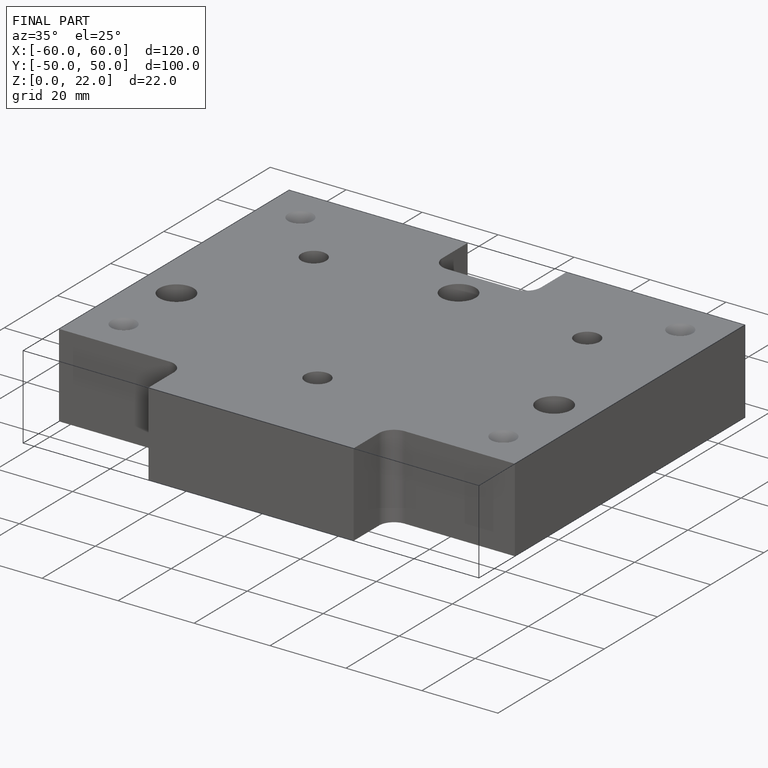
[diagram: finished part — iso view with bounding-box wireframe]
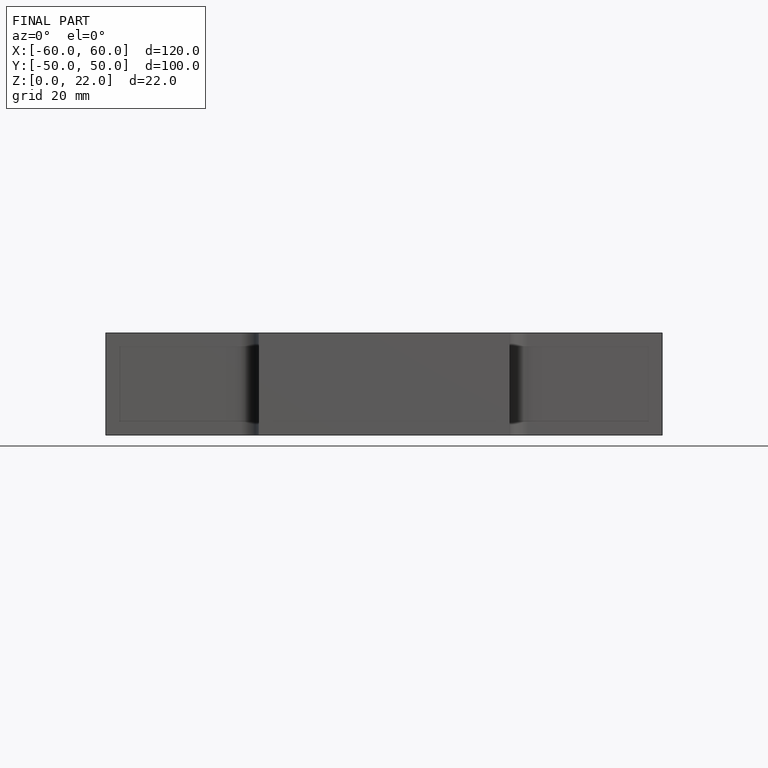
[diagram: finished part — front view with bounding-box wireframe]
